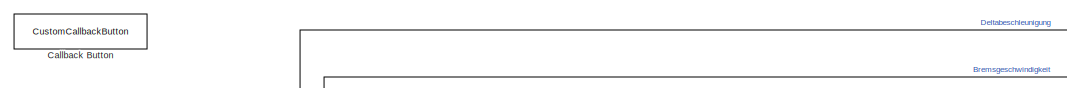
[diagram: root canvas - part 1/3, top left region]
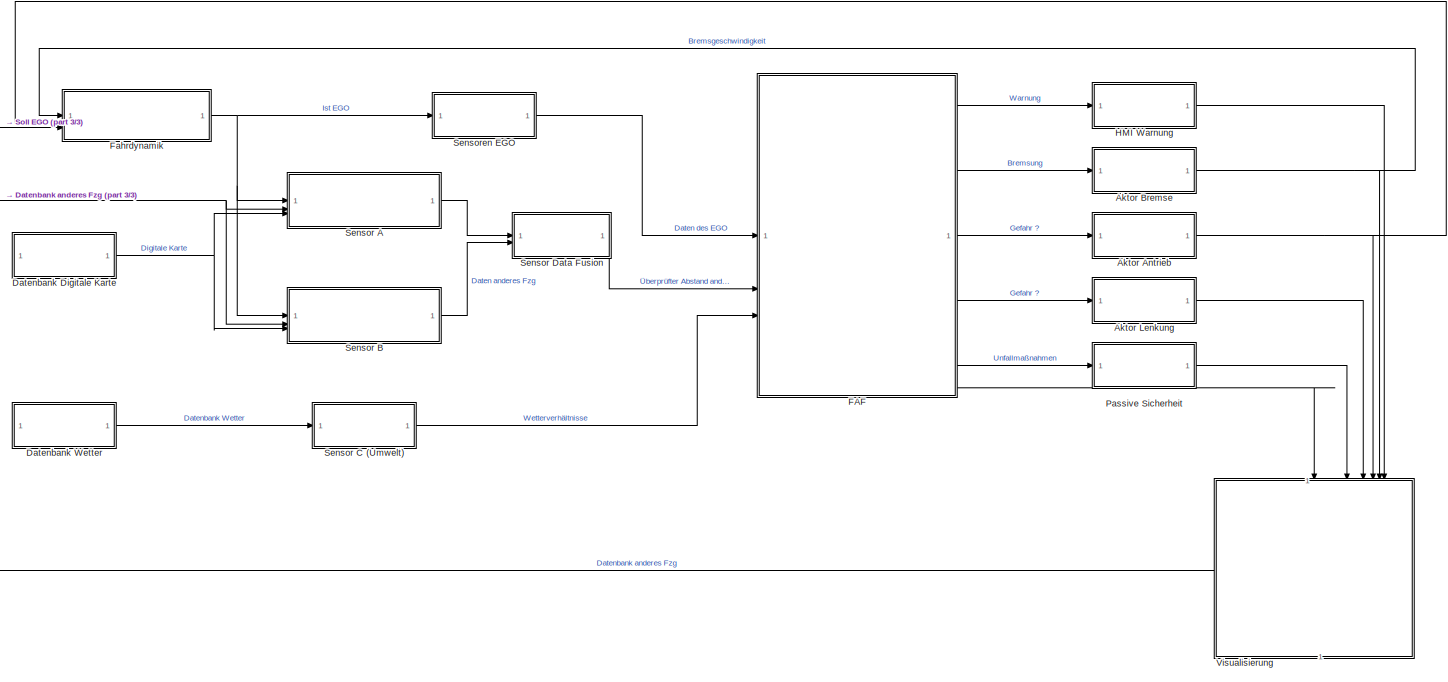
[diagram: root canvas - part 2/3, most of the canvas]
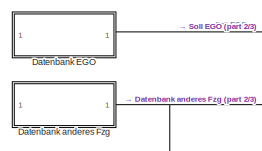
[diagram: root canvas - part 3/3, top left region]
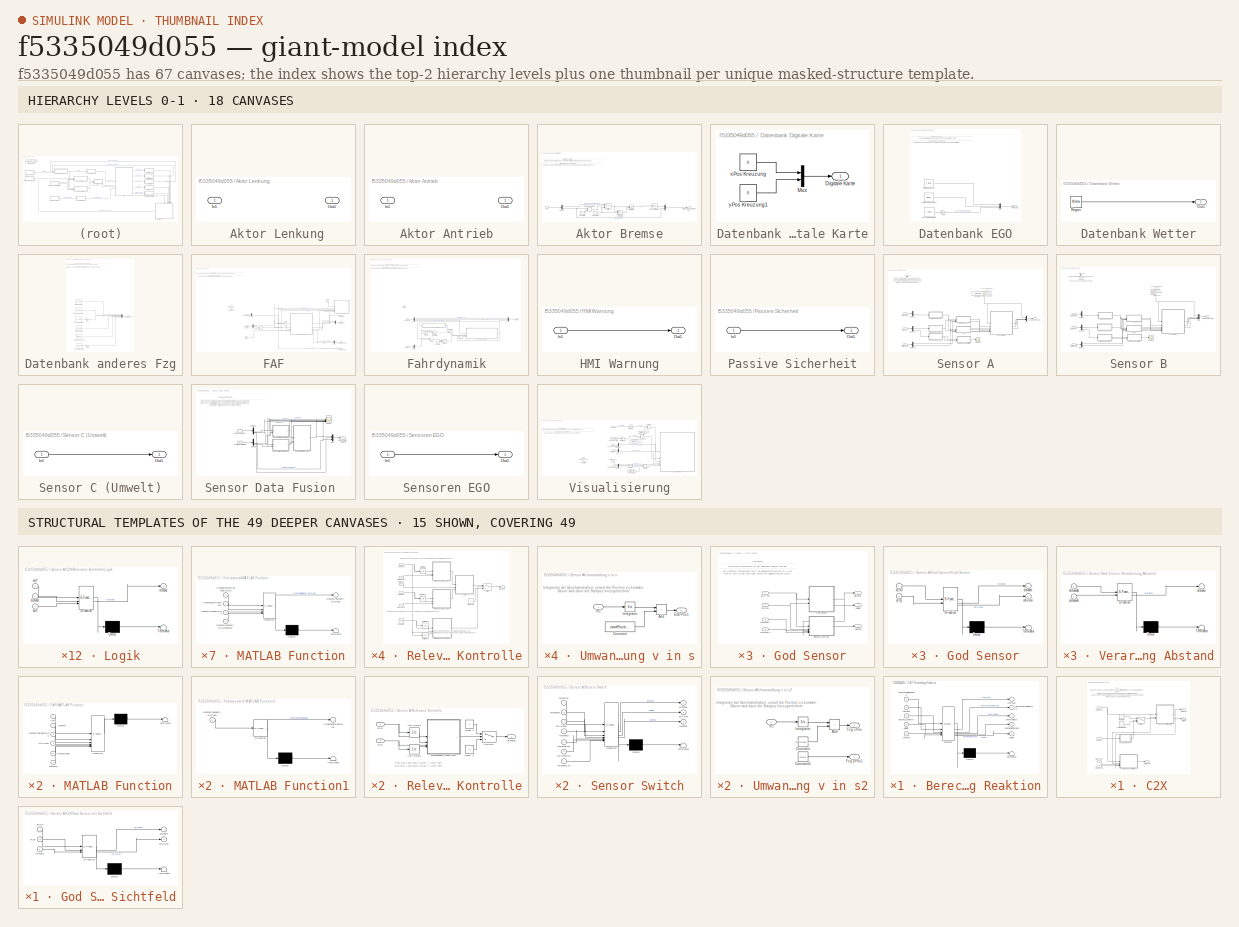
[diagram: thumbnail index - top-2 hierarchy levels (18 canvases) + 15 structural-template representatives of the remaining 49 canvases]
MODEL slx_f5335049d055
KIND model
CONFIG AbsTol = auto
CONFIG EnableMultiTasking = off
CONFIG FixedStep = sampletime
CONFIG InitFcn = if ~evalin('base', 'exist(''Auswertungsflag'', ''var'')') || evalin('base', 'Auswertungsflag.Value == 0')\n    Parameterskript;\n    run('StartGUI');  % explizit ausführen (nicht blockierend!)\nend\n
CONFIG MaxStep = auto
CONFIG MinStep = auto
CONFIG RelTol = 1e-3
CONFIG SampleTimeConstraint = Unconstrained
CONFIG SolverName = FixedStepAuto
CONFIG StartTime = 0.0
CONFIG StopTime = stoptime
BLOCK [SubSystem]  Aktor Lenkung
  NameLocation = top
BLOCK [Inport]  Aktor Lenkung/In1
BLOCK [Outport]  Aktor Lenkung/Out1
BLOCK [SubSystem] Aktor Antrieb
  NameLocation = top
BLOCK [Inport] Aktor Antrieb/In1
BLOCK [Outport] Aktor Antrieb/Out1
BLOCK [SubSystem] Aktor Bremse
  NameLocation = top
BLOCK [Outport] Aktor Bremse/Bremsgeschwindigkeit
BLOCK [Constant] Aktor Bremse/Constant
BLOCK [Constant] Aktor Bremse/Constant1
  Value = 0
BLOCK [Demux] Aktor Bremse/Demux
  Outputs = 2
BLOCK [Inport] Aktor Bremse/In1
BLOCK [Integrator] Aktor Bremse/Integrator
  ExternalReset = level
BLOCK [Mux] Aktor Bremse/Mux
  DisplayOption = bar
  Inputs = 2
BLOCK [RelationalOperator] Aktor Bremse/Relational Operator
  InputSameDT = off
  Operator = ==
  OutDataTypeStr = boolean
  RndMeth = Simplest
BLOCK [RelationalOperator] Aktor Bremse/Relational Operator1
  InputSameDT = off
  Operator = ==
  OutDataTypeStr = boolean
  RndMeth = Simplest
BLOCK [Switch] Aktor Bremse/Switch
  Criteria = u2 > Threshold
  InputSameDT = off
  SaturateOnIntegerOverflow = off
BLOCK [TransportDelay] Aktor Bremse/Transport Delay1
  DelayTime = 0.3
BLOCK [CustomCallbackButton] Callback Button
  Configuration = {"components":[{"name":"BackgroundImageComponent","settings":{"image":{"size":[0,0],"src":"default","srcOrientation":"Right"},"position":[0,0,1,1]}},{"name":"ButtonStateComponent","settings":{"buttonType":"momentary","clickFcn":"clear all\nclc\nassignin('base','Auswertungsbutton',makeParam(1));\nStartGUI","onValue":1,"position":[0,0,1,1],"pressDelay":"500","pressFcn":"","repeatInterval":"0","state...<+2097ch>
  CustomBackgroundColor = {"color":[0.9568627451,0.9568627451,0.9568627451],"show":true}
BLOCK [SubSystem] Datenbank Digitale Karte
  NameLocation = top
BLOCK [Outport] Datenbank Digitale Karte/Digitale Karte
BLOCK [Mux] Datenbank Digitale Karte/Mux
  DisplayOption = bar
  Inputs = 2
BLOCK [Constant] Datenbank Digitale Karte/xPos Kreuzung
  Value = 0
BLOCK [Constant] Datenbank Digitale Karte/yPos Kreuzung1
  Value = 0
BLOCK [SubSystem] Datenbank EGO
BLOCK [Outport] Datenbank EGO/Daten EGO
BLOCK [Constant] Datenbank EGO/Fahrzeugmasse in kg
  Value = mEGO
BLOCK [Gain] Datenbank EGO/Gain
  Gain = 1/3.6
BLOCK [Constant] Datenbank EGO/Geschwindigkeit km//h
  Value = v_EGO
BLOCK [Constant] Datenbank EGO/Motorleistung in kW
  Value = P_EGO
BLOCK [Mux] Datenbank EGO/Mux
  DisplayOption = bar
  Inputs = 3
BLOCK [SubSystem] Datenbank Wetter
  NameLocation = top
BLOCK [Outport] Datenbank Wetter/Out1
BLOCK [Constant] Datenbank Wetter/Regen
  Value = Wetter
BLOCK [SubSystem] Datenbank anderes Fzg
BLOCK [Outport] Datenbank anderes Fzg/Daten anderes Fzg
BLOCK [Constant] Datenbank anderes Fzg/Fahrzeugmasse in kg
  Value = mFZG
BLOCK [Constant] Datenbank anderes Fzg/Fahrzeugmasse in kg1
  Value = mEGO
BLOCK [Gain] Datenbank anderes Fzg/Gain
  Gain = 1/3.6
BLOCK [Gain] Datenbank anderes Fzg/Gain1
  Gain = 1/3.6
BLOCK [Constant] Datenbank anderes Fzg/Geschwindigkeit km//h
  Value = v_FZG
BLOCK [Constant] Datenbank anderes Fzg/Geschwindigkeit km//h1
  Value = v_EGO
BLOCK [Constant] Datenbank anderes Fzg/Motorleistung in kW
  Value = P_FZG
BLOCK [Constant] Datenbank anderes Fzg/Motorleistung in kW1
  Value = P_EGO
BLOCK [Mux] Datenbank anderes Fzg/Mux
  DisplayOption = bar
  Inputs = 6
BLOCK [SubSystem] FAF
  NameLocation = top
  PortSchema = {"entries":[{"content":{"sides":[{"content":{"connectorIds":["In1","In2","In3"]},"type":"ConnectorPlacement.EquallySpacedRectSide","uuid":"e9873d16-4c3b-480f-9547-2fedddc84fa2"},{"content":{"connectorIds":["Out1","Out2","Out3","Out4","Out5"],"side":"RIGHT"},"type":"ConnectorPlacement.EquallySpacedRectSide","uuid":"f34f386d-1ebd-46c0-87cc-6cf8d85cbe5c"},{"content":{"side":"TOP"},"type":"ConnectorPl...<+412ch>
BLOCK [Sum] FAF/Add
  IconShape = rectangular
BLOCK [Outport] FAF/Antriebssignal
  Port = 3
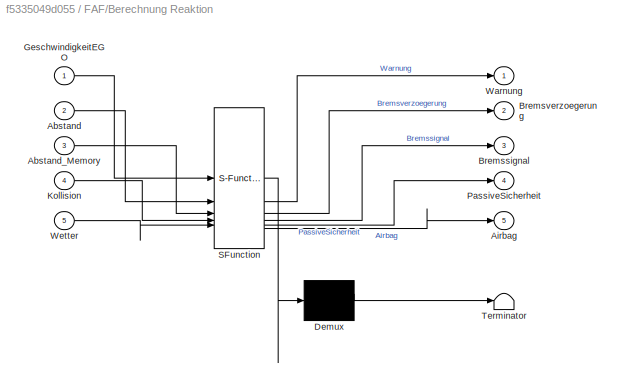
BLOCK [SubSystem] FAF/Berechnung Reaktion
  ErrorFcn = Stateflow.Translate.translate
  PermitHierarchicalResolution = ExplicitOnly
  SFBlockType = MATLAB Function
  TreatAsAtomicUnit = on
BLOCK [Demux] FAF/Berechnung Reaktion/ Demux 
  Outputs = 1
BLOCK [S-Function] FAF/Berechnung Reaktion/ SFunction 
  EnableBusSupport = on
  FunctionName = sf_sfun
  Parameters = Airbagzeit,Ausloesezeit,Haltezeit,dt,g,munass,muschnee,mutrocken
  PortCounts = [5 6]
  SFcnIsStateOwnerBlock = off
  SFunctionDeploymentMode = off
  Tag = Stateflow S-Function 1
BLOCK [Terminator] FAF/Berechnung Reaktion/ Terminator 
BLOCK [Inport] FAF/Berechnung Reaktion/Abstand
  Port = 2
BLOCK [Inport] FAF/Berechnung Reaktion/Abstand_Memory
  Port = 3
BLOCK [Outport] FAF/Berechnung Reaktion/Airbag
  Port = 5
BLOCK [Outport] FAF/Berechnung Reaktion/Bremssignal
  Port = 3
BLOCK [Outport] FAF/Berechnung Reaktion/Bremsverzoegerung
  Port = 2
BLOCK [Inport] FAF/Berechnung Reaktion/GeschwindigkeitEGO
BLOCK [Inport] FAF/Berechnung Reaktion/Kollision
  Port = 4
BLOCK [Outport] FAF/Berechnung Reaktion/PassiveSicherheit
  Port = 4
BLOCK [Outport] FAF/Berechnung Reaktion/Warnung
BLOCK [Inport] FAF/Berechnung Reaktion/Wetter
  Port = 5
BLOCK [Outport] FAF/Bremssignal
  Port = 2
BLOCK [Clock] FAF/Clock1
  Decimation = 1
BLOCK [Inport] FAF/Daten des EGO
BLOCK [Demux] FAF/Demux
  Outputs = 3
BLOCK [Demux] FAF/Demux1
  Outputs = 3
BLOCK [Outport] FAF/Lenksignal
  Port = 4
BLOCK [SubSystem] FAF/MATLAB Function
  ErrorFcn = Stateflow.Translate.translate
  PermitHierarchicalResolution = ExplicitOnly
  SFBlockType = MATLAB Function
  SystemSampleTime = sampletime
  TreatAsAtomicUnit = on
BLOCK [Demux] FAF/MATLAB Function/ Demux 
  Outputs = 1
BLOCK [S-Function] FAF/MATLAB Function/ SFunction 
  EnableBusSupport = on
  FunctionName = sf_sfun
  Parameters = defaultDistance
  PortCounts = [6 1]
  SFcnIsStateOwnerBlock = off
  SFunctionDeploymentMode = off
  Tag = Stateflow S-Function 5
BLOCK [Terminator] FAF/MATLAB Function/ Terminator 
BLOCK [Inport] FAF/MATLAB Function/Abstand
  Port = 2
BLOCK [Inport] FAF/MATLAB Function/Bremssignal
  Port = 5
BLOCK [Inport] FAF/MATLAB Function/GeschwindigkeitEGO
  Port = 3
BLOCK [Inport] FAF/MATLAB Function/Kollision
  Port = 4
BLOCK [Inport] FAF/MATLAB Function/Warnung
  Port = 6
BLOCK [Inport] FAF/MATLAB Function/time
BLOCK [Memory] FAF/Memory
  InheritSampleTime = on
BLOCK [Mux] FAF/Mux
  DisplayOption = bar
  Inputs = 2
BLOCK [Mux] FAF/Mux1
  DisplayOption = bar
  Inputs = 2
BLOCK [Outport] FAF/Passive Sicherheit
  Port = 5
BLOCK [Outport] FAF/Visualisierung EGO
  Port = 6
BLOCK [Outport] FAF/Warnsignal
BLOCK [Inport] FAF/Wetter
  Port = 3
BLOCK [Inport] FAF/Überprüfter Abstand
  Port = 2
BLOCK [SubSystem] Fahrdynamik
  NameLocation = top
BLOCK [Sum] Fahrdynamik/Add2
  IconShape = rectangular
BLOCK [Inport] Fahrdynamik/Antrieb
  Port = 2
BLOCK [Inport] Fahrdynamik/Bremse
BLOCK [Constant] Fahrdynamik/Constant4
  Value = 0
BLOCK [Inport] Fahrdynamik/Daten EGO
  Port = 3
BLOCK [Demux] Fahrdynamik/Demux
  Outputs = 3
BLOCK [Demux] Fahrdynamik/Demux1
  Outputs = 2
BLOCK [Integrator] Fahrdynamik/Integrator2
  ExternalReset = rising
BLOCK [Outport] Fahrdynamik/Ist
BLOCK [SubSystem] Fahrdynamik/MATLAB Function
  ErrorFcn = Stateflow.Translate.translate
  PermitHierarchicalResolution = ExplicitOnly
  SFBlockType = MATLAB Function
  SystemSampleTime = sampletime
  TreatAsAtomicUnit = on
BLOCK [Demux] Fahrdynamik/MATLAB Function/ Demux 
  Outputs = 1
BLOCK [S-Function] Fahrdynamik/MATLAB Function/ SFunction 
  EnableBusSupport = on
  FunctionName = sf_sfun
  PortCounts = [4 2]
  SFcnIsStateOwnerBlock = off
  SFunctionDeploymentMode = off
  Tag = Stateflow S-Function 9
BLOCK [Terminator] Fahrdynamik/MATLAB Function/ Terminator 
BLOCK [Inport] Fahrdynamik/MATLAB Function/Anfahrgeschwindigkeit
  Port = 2
BLOCK [Inport] Fahrdynamik/MATLAB Function/GeschwindigkeitEGO
  Port = 3
BLOCK [Outport] Fahrdynamik/MATLAB Function/Geschwindigkeit_EGOneu
BLOCK [Inport] Fahrdynamik/MATLAB Function/Geschwindigkeit_EGOneudelay
  Port = 4
BLOCK [Inport] Fahrdynamik/MATLAB Function/VorgabeGeschwindigkeitEGO
BLOCK [SubSystem] Fahrdynamik/MATLAB Function1
  ErrorFcn = Stateflow.Translate.translate
  PermitHierarchicalResolution = ExplicitOnly
  SFBlockType = MATLAB Function
  TreatAsAtomicUnit = on
BLOCK [Demux] Fahrdynamik/MATLAB Function1/ Demux 
  Outputs = 1
BLOCK [S-Function] Fahrdynamik/MATLAB Function1/ SFunction 
  EnableBusSupport = on
  FunctionName = sf_sfun
  Parameters = P_EGO,Wetter,g,mEGO,munass,muschnee,mutrocken
  PortCounts = [1 2]
  SFcnIsStateOwnerBlock = off
  SFunctionDeploymentMode = off
  Tag = Stateflow S-Function 33
BLOCK [Terminator] Fahrdynamik/MATLAB Function1/ Terminator 
BLOCK [Outport] Fahrdynamik/MATLAB Function1/Anfahrbeschleunigung
BLOCK [Inport] Fahrdynamik/MATLAB Function1/Geschwindigkeit_EGOneu
BLOCK [Memory] Fahrdynamik/Memory1
  InheritSampleTime = on
BLOCK [Memory] Fahrdynamik/Memory2
  InheritSampleTime = on
BLOCK [Mux] Fahrdynamik/Mux
  DisplayOption = bar
  Inputs = 3
BLOCK [RelationalOperator] Fahrdynamik/Relational Operator2
  InputSameDT = off
  Operator = >
  OutDataTypeStr = boolean
  RndMeth = Simplest
BLOCK [Switch] Fahrdynamik/Switch3
  InputSameDT = off
  SaturateOnIntegerOverflow = off
BLOCK [SubSystem] HMI Warnung
  NameLocation = top
BLOCK [Inport] HMI Warnung/In1
BLOCK [Outport] HMI Warnung/Out1
BLOCK [SubSystem] Passive Sicherheit
  NameLocation = top
BLOCK [Inport] Passive Sicherheit/In1
BLOCK [Outport] Passive Sicherheit/Out1
BLOCK [SubSystem] Sensor A
  NameLocation = top
BLOCK [Outport] Sensor A/Abstand Sensor A
BLOCK [SubSystem] Sensor A/C2X
BLOCK [Inport] Sensor A/C2X/EGO Pos1
BLOCK [Inport] Sensor A/C2X/Fzg Pos
  Port = 2
BLOCK [SubSystem] Sensor A/C2X/Fzg Vorhanden?
  ErrorFcn = Stateflow.Translate.translate
  PermitHierarchicalResolution = ExplicitOnly
  SFBlockType = MATLAB Function
  TreatAsAtomicUnit = on
BLOCK [Demux] Sensor A/C2X/Fzg Vorhanden?/ Demux 
  Outputs = 1
BLOCK [S-Function] Sensor A/C2X/Fzg Vorhanden?/ SFunction 
  EnableBusSupport = on
  FunctionName = sf_sfun
  PortCounts = [1 2]
  SFcnIsStateOwnerBlock = off
  SFunctionDeploymentMode = off
  Tag = Stateflow S-Function 3
BLOCK [Terminator] Sensor A/C2X/Fzg Vorhanden?/ Terminator 
BLOCK [Inport] Sensor A/C2X/Fzg Vorhanden?/u
BLOCK [Outport] Sensor A/C2X/Fzg Vorhanden?/y
BLOCK [SubSystem] Sensor A/C2X/God Sensor mit Sichtfeld
  ErrorFcn = Stateflow.Translate.translate
  PermitHierarchicalResolution = ExplicitOnly
  SFBlockType = MATLAB Function
  TreatAsAtomicUnit = on
BLOCK [Demux] Sensor A/C2X/God Sensor mit Sichtfeld/ Demux 
  Outputs = 1
BLOCK [S-Function] Sensor A/C2X/God Sensor mit Sichtfeld/ SFunction 
  EnableBusSupport = on
  FunctionName = sf_sfun
  Parameters = OeffnungswinkelA,ReichweiteA,b,l,xFZG,yEGO
  PortCounts = [3 3]
  SFcnIsStateOwnerBlock = off
  SFunctionDeploymentMode = off
  Tag = Stateflow S-Function 13
BLOCK [Terminator] Sensor A/C2X/God Sensor mit Sichtfeld/ Terminator 
BLOCK [Outport] Sensor A/C2X/God Sensor mit Sichtfeld/collision
  Port = 2
BLOCK [Outport] Sensor A/C2X/God Sensor mit Sichtfeld/distance
BLOCK [Inport] Sensor A/C2X/God Sensor mit Sichtfeld/relevanz
  Port = 3
BLOCK [Inport] Sensor A/C2X/God Sensor mit Sichtfeld/xEGO
BLOCK [Inport] Sensor A/C2X/God Sensor mit Sichtfeld/yFzg
  Port = 2
BLOCK [Constant] Sensor A/C2X/Hindernis
BLOCK [Constant] Sensor A/C2X/Kein Hindernis
  Value = -1
BLOCK [Inport] Sensor A/C2X/Kreuzung x
  Port = 4
BLOCK [Inport] Sensor A/C2X/Kreuzung y
  Port = 3
BLOCK [Outport] Sensor A/C2X/Relevanz
  Port = 3
BLOCK [SubSystem] Sensor A/C2X/Relevanz Kontrolle
BLOCK [SubSystem] Sensor A/C2X/Relevanz Kontrolle/Bewegungs-Achse Fzg
  ErrorFcn = Stateflow.Translate.translate
  PermitHierarchicalResolution = ExplicitOnly
  SFBlockType = MATLAB Function
  TreatAsAtomicUnit = on
BLOCK [Demux] Sensor A/C2X/Relevanz Kontrolle/Bewegungs-Achse Fzg/ Demux 
  Outputs = 1
BLOCK [S-Function] Sensor A/C2X/Relevanz Kontrolle/Bewegungs-Achse Fzg/ SFunction 
  EnableBusSupport = on
  FunctionName = sf_sfun
  PortCounts = [4 2]
  SFcnIsStateOwnerBlock = off
  SFunctionDeploymentMode = off
  Tag = Stateflow S-Function 14
BLOCK [Terminator] Sensor A/C2X/Relevanz Kontrolle/Bewegungs-Achse Fzg/ Terminator 
BLOCK [Outport] Sensor A/C2X/Relevanz Kontrolle/Bewegungs-Achse Fzg/bewegung
BLOCK [Inport] Sensor A/C2X/Relevanz Kontrolle/Bewegungs-Achse Fzg/xFzg
BLOCK [Inport] Sensor A/C2X/Relevanz Kontrolle/Bewegungs-Achse Fzg/xFzg_prev
  Port = 2
BLOCK [Inport] Sensor A/C2X/Relevanz Kontrolle/Bewegungs-Achse Fzg/yFzg
  Port = 3
BLOCK [Inport] Sensor A/C2X/Relevanz Kontrolle/Bewegungs-Achse Fzg/yFzg_prev
  Port = 4
BLOCK [Constant] Sensor A/C2X/Relevanz Kontrolle/Constant
  Value = xFZG
BLOCK [Inport] Sensor A/C2X/Relevanz Kontrolle/EGO Pos
BLOCK [Inport] Sensor A/C2X/Relevanz Kontrolle/Fzg Pos Y
  Port = 2
BLOCK [Inport] Sensor A/C2X/Relevanz Kontrolle/Kreuzung x
  Port = 5
BLOCK [Inport] Sensor A/C2X/Relevanz Kontrolle/Kreuzung y
  Port = 3
BLOCK [SubSystem] Sensor A/C2X/Relevanz Kontrolle/Logik
  ErrorFcn = Stateflow.Translate.translate
  PermitHierarchicalResolution = ExplicitOnly
  SFBlockType = MATLAB Function
  TreatAsAtomicUnit = on
BLOCK [Demux] Sensor A/C2X/Relevanz Kontrolle/Logik/ Demux 
  Outputs = 1
BLOCK [S-Function] Sensor A/C2X/Relevanz Kontrolle/Logik/ SFunction 
  EnableBusSupport = on
  FunctionName = sf_sfun
  Parameters = defaultDistance
  PortCounts = [3 2]
  SFcnIsStateOwnerBlock = off
  SFunctionDeploymentMode = off
  Tag = Stateflow S-Function 15
BLOCK [Terminator] Sensor A/C2X/Relevanz Kontrolle/Logik/ Terminator 
BLOCK [Inport] Sensor A/C2X/Relevanz Kontrolle/Logik/distance
  Port = 2
BLOCK [Inport] Sensor A/C2X/Relevanz Kontrolle/Logik/outX
  Port = 3
BLOCK [Inport] Sensor A/C2X/Relevanz Kontrolle/Logik/outY
BLOCK [Outport] Sensor A/C2X/Relevanz Kontrolle/Logik/relevanz
BLOCK [Constant] Sensor A/C2X/Relevanz Kontrolle/Relevanz
  Value = -1
BLOCK [SubSystem] Sensor A/C2X/Relevanz Kontrolle/Relevanz Kreuzung x
  ErrorFcn = Stateflow.Translate.translate
  PermitHierarchicalResolution = ExplicitOnly
  SFBlockType = MATLAB Function
  TreatAsAtomicUnit = on
BLOCK [Demux] Sensor A/C2X/Relevanz Kontrolle/Relevanz Kreuzung x/ Demux 
  Outputs = 1
BLOCK [S-Function] Sensor A/C2X/Relevanz Kontrolle/Relevanz Kreuzung x/ SFunction 
  EnableBusSupport = on
  FunctionName = sf_sfun
  Parameters = b
  PortCounts = [3 2]
  SFcnIsStateOwnerBlock = off
  SFunctionDeploymentMode = off
  Tag = Stateflow S-Function 18
BLOCK [Terminator] Sensor A/C2X/Relevanz Kontrolle/Relevanz Kreuzung x/ Terminator 
BLOCK [Outport] Sensor A/C2X/Relevanz Kontrolle/Relevanz Kreuzung x/out
BLOCK [Inport] Sensor A/C2X/Relevanz Kontrolle/Relevanz Kreuzung x/targetX
  Port = 3
BLOCK [Inport] Sensor A/C2X/Relevanz Kontrolle/Relevanz Kreuzung x/xPos
BLOCK [Inport] Sensor A/C2X/Relevanz Kontrolle/Relevanz Kreuzung x/xPos_prev
  Port = 2
BLOCK [SubSystem] Sensor A/C2X/Relevanz Kontrolle/Relevanz Kreuzung y
  ErrorFcn = Stateflow.Translate.translate
  PermitHierarchicalResolution = ExplicitOnly
  SFBlockType = MATLAB Function
  TreatAsAtomicUnit = on
BLOCK [Demux] Sensor A/C2X/Relevanz Kontrolle/Relevanz Kreuzung y/ Demux 
  Outputs = 1
BLOCK [S-Function] Sensor A/C2X/Relevanz Kontrolle/Relevanz Kreuzung y/ SFunction 
  EnableBusSupport = on
  FunctionName = sf_sfun
  Parameters = b
  PortCounts = [3 2]
  SFcnIsStateOwnerBlock = off
  SFunctionDeploymentMode = off
  Tag = Stateflow S-Function 24
BLOCK [Terminator] Sensor A/C2X/Relevanz Kontrolle/Relevanz Kreuzung y/ Terminator 
BLOCK [Outport] Sensor A/C2X/Relevanz Kontrolle/Relevanz Kreuzung y/out
BLOCK [Inport] Sensor A/C2X/Relevanz Kontrolle/Relevanz Kreuzung y/targetY
  Port = 3
BLOCK [Inport] Sensor A/C2X/Relevanz Kontrolle/Relevanz Kreuzung y/yPos
BLOCK [Inport] Sensor A/C2X/Relevanz Kontrolle/Relevanz Kreuzung y/yPos_prev
  Port = 2
BLOCK [Switch] Sensor A/C2X/Relevanz Kontrolle/Switch
  Criteria = u2 > Threshold
  InputSameDT = off
  SaturateOnIntegerOverflow = off
  Threshold = 1
BLOCK [UnitDelay] Sensor A/C2X/Relevanz Kontrolle/Unit Delay
  HasFrameUpgradeWarning = on
  SampleTime = -1
BLOCK [UnitDelay] Sensor A/C2X/Relevanz Kontrolle/Unit Delay1
  HasFrameUpgradeWarning = on
  SampleTime = -1
BLOCK [UnitDelay] Sensor A/C2X/Relevanz Kontrolle/Unit Delay2
  HasFrameUpgradeWarning = on
  SampleTime = -1
BLOCK [UnitDelay] Sensor A/C2X/Relevanz Kontrolle/Unit Delay3
  HasFrameUpgradeWarning = on
  SampleTime = -1
BLOCK [Inport] Sensor A/C2X/Relevanz Kontrolle/distance
  Port = 4
BLOCK [Outport] Sensor A/C2X/Relevanz Kontrolle/relevanz
BLOCK [Switch] Sensor A/C2X/Switch
  InputSameDT = off
  SaturateOnIntegerOverflow = off
BLOCK [Outport] Sensor A/C2X/collision
  Port = 2
BLOCK [Outport] Sensor A/C2X/distance
BLOCK [Constant] Sensor A/Constant
  Value = SensorA
BLOCK [Inport] Sensor A/Daten EGO
BLOCK [Inport] Sensor A/Daten Fzg
  Port = 2
BLOCK [Demux] Sensor A/Demux
  Outputs = 3
BLOCK [Demux] Sensor A/Demux1
  Outputs = 2
BLOCK [Demux] Sensor A/Demux2
  Outputs = 6
BLOCK [Inport] Sensor A/Digitale Karte
  Port = 3
BLOCK [SubSystem] Sensor A/God Sensor
BLOCK [Inport] Sensor A/God Sensor/EGO Pos
BLOCK [Inport] Sensor A/God Sensor/Fzg Pos
  Port = 2
BLOCK [SubSystem] Sensor A/God Sensor/God Sensor
  ErrorFcn = Stateflow.Translate.translate
  PermitHierarchicalResolution = ExplicitOnly
  SFBlockType = MATLAB Function
  TreatAsAtomicUnit = on
BLOCK [Demux] Sensor A/God Sensor/God Sensor/ Demux 
  Outputs = 1
BLOCK [S-Function] Sensor A/God Sensor/God Sensor/ SFunction 
  EnableBusSupport = on
  FunctionName = sf_sfun
  Parameters = b,l,xFZG,yEGO
  PortCounts = [2 3]
  SFcnIsStateOwnerBlock = off
  SFunctionDeploymentMode = off
  Tag = Stateflow S-Function 25
BLOCK [Terminator] Sensor A/God Sensor/God Sensor/ Terminator 
BLOCK [Outport] Sensor A/God Sensor/God Sensor/collision
  Port = 2
BLOCK [Outport] Sensor A/God Sensor/God Sensor/distance
BLOCK [Inport] Sensor A/God Sensor/God Sensor/xEGO
BLOCK [Inport] Sensor A/God Sensor/God Sensor/yFzg
  Port = 2
BLOCK [Inport] Sensor A/God Sensor/Kreuzung x
  Port = 4
BLOCK [Inport] Sensor A/God Sensor/Kreuzung y
  Port = 3
BLOCK [SubSystem] Sensor A/God Sensor/Relevanz Kontrolle
BLOCK [SubSystem] Sensor A/God Sensor/Relevanz Kontrolle/Bewegungs-Achse Fzg
  ErrorFcn = Stateflow.Translate.translate
  PermitHierarchicalResolution = ExplicitOnly
  SFBlockType = MATLAB Function
  TreatAsAtomicUnit = on
BLOCK [Demux] Sensor A/God Sensor/Relevanz Kontrolle/Bewegungs-Achse Fzg/ Demux 
  Outputs = 1
BLOCK [S-Function] Sensor A/God Sensor/Relevanz Kontrolle/Bewegungs-Achse Fzg/ SFunction 
  EnableBusSupport = on
  FunctionName = sf_sfun
  PortCounts = [4 2]
  SFcnIsStateOwnerBlock = off
  SFunctionDeploymentMode = off
  Tag = Stateflow S-Function 26
BLOCK [Terminator] Sensor A/God Sensor/Relevanz Kontrolle/Bewegungs-Achse Fzg/ Terminator 
BLOCK [Outport] Sensor A/God Sensor/Relevanz Kontrolle/Bewegungs-Achse Fzg/bewegung
BLOCK [Inport] Sensor A/God Sensor/Relevanz Kontrolle/Bewegungs-Achse Fzg/xFzg
BLOCK [Inport] Sensor A/God Sensor/Relevanz Kontrolle/Bewegungs-Achse Fzg/xFzg_prev
  Port = 2
BLOCK [Inport] Sensor A/God Sensor/Relevanz Kontrolle/Bewegungs-Achse Fzg/yFzg
  Port = 3
BLOCK [Inport] Sensor A/God Sensor/Relevanz Kontrolle/Bewegungs-Achse Fzg/yFzg_prev
  Port = 4
BLOCK [Constant] Sensor A/God Sensor/Relevanz Kontrolle/Constant
  Value = xFZG
BLOCK [Inport] Sensor A/God Sensor/Relevanz Kontrolle/EGO Pos
BLOCK [Inport] Sensor A/God Sensor/Relevanz Kontrolle/Fzg Pos Y
  Port = 2
BLOCK [Inport] Sensor A/God Sensor/Relevanz Kontrolle/Kreuzung x
  Port = 5
BLOCK [Inport] Sensor A/God Sensor/Relevanz Kontrolle/Kreuzung y
  Port = 3
BLOCK [SubSystem] Sensor A/God Sensor/Relevanz Kontrolle/Logik
  ErrorFcn = Stateflow.Translate.translate
  PermitHierarchicalResolution = ExplicitOnly
  SFBlockType = MATLAB Function
  TreatAsAtomicUnit = on
BLOCK [Demux] Sensor A/God Sensor/Relevanz Kontrolle/Logik/ Demux 
  Outputs = 1
BLOCK [S-Function] Sensor A/God Sensor/Relevanz Kontrolle/Logik/ SFunction 
  EnableBusSupport = on
  FunctionName = sf_sfun
  Parameters = defaultDistance
  PortCounts = [3 2]
  SFcnIsStateOwnerBlock = off
  SFunctionDeploymentMode = off
  Tag = Stateflow S-Function 4
BLOCK [Terminator] Sensor A/God Sensor/Relevanz Kontrolle/Logik/ Terminator 
BLOCK [Inport] Sensor A/God Sensor/Relevanz Kontrolle/Logik/distance
  Port = 2
BLOCK [Inport] Sensor A/God Sensor/Relevanz Kontrolle/Logik/outX
  Port = 3
BLOCK [Inport] Sensor A/God Sensor/Relevanz Kontrolle/Logik/outY
BLOCK [Outport] Sensor A/God Sensor/Relevanz Kontrolle/Logik/relevanz
BLOCK [Constant] Sensor A/God Sensor/Relevanz Kontrolle/Relevanz
  Value = -1
BLOCK [SubSystem] Sensor A/God Sensor/Relevanz Kontrolle/Relevanz Kreuzung x
  ErrorFcn = Stateflow.Translate.translate
  PermitHierarchicalResolution = ExplicitOnly
  SFBlockType = MATLAB Function
  TreatAsAtomicUnit = on
BLOCK [Demux] Sensor A/God Sensor/Relevanz Kontrolle/Relevanz Kreuzung x/ Demux 
  Outputs = 1
BLOCK [S-Function] Sensor A/God Sensor/Relevanz Kontrolle/Relevanz Kreuzung x/ SFunction 
  EnableBusSupport = on
  FunctionName = sf_sfun
  Parameters = b
  PortCounts = [3 2]
  SFcnIsStateOwnerBlock = off
  SFunctionDeploymentMode = off
  Tag = Stateflow S-Function 37
BLOCK [Terminator] Sensor A/God Sensor/Relevanz Kontrolle/Relevanz Kreuzung x/ Terminator 
BLOCK [Outport] Sensor A/God Sensor/Relevanz Kontrolle/Relevanz Kreuzung x/out
BLOCK [Inport] Sensor A/God Sensor/Relevanz Kontrolle/Relevanz Kreuzung x/targetX
  Port = 3
BLOCK [Inport] Sensor A/God Sensor/Relevanz Kontrolle/Relevanz Kreuzung x/xPos
BLOCK [Inport] Sensor A/God Sensor/Relevanz Kontrolle/Relevanz Kreuzung x/xPos_prev
  Port = 2
BLOCK [SubSystem] Sensor A/God Sensor/Relevanz Kontrolle/Relevanz Kreuzung y
  ErrorFcn = Stateflow.Translate.translate
  PermitHierarchicalResolution = ExplicitOnly
  SFBlockType = MATLAB Function
  TreatAsAtomicUnit = on
BLOCK [Demux] Sensor A/God Sensor/Relevanz Kontrolle/Relevanz Kreuzung y/ Demux 
  Outputs = 1
BLOCK [S-Function] Sensor A/God Sensor/Relevanz Kontrolle/Relevanz Kreuzung y/ SFunction 
  EnableBusSupport = on
  FunctionName = sf_sfun
  Parameters = b
  PortCounts = [3 2]
  SFcnIsStateOwnerBlock = off
  SFunctionDeploymentMode = off
  Tag = Stateflow S-Function 38
BLOCK [Terminator] Sensor A/God Sensor/Relevanz Kontrolle/Relevanz Kreuzung y/ Terminator 
BLOCK [Outport] Sensor A/God Sensor/Relevanz Kontrolle/Relevanz Kreuzung y/out
BLOCK [Inport] Sensor A/God Sensor/Relevanz Kontrolle/Relevanz Kreuzung y/targetY
  Port = 3
BLOCK [Inport] Sensor A/God Sensor/Relevanz Kontrolle/Relevanz Kreuzung y/yPos
BLOCK [Inport] Sensor A/God Sensor/Relevanz Kontrolle/Relevanz Kreuzung y/yPos_prev
  Port = 2
BLOCK [Switch] Sensor A/God Sensor/Relevanz Kontrolle/Switch
  Criteria = u2 > Threshold
  InputSameDT = off
  SaturateOnIntegerOverflow = off
  Threshold = 1
BLOCK [UnitDelay] Sensor A/God Sensor/Relevanz Kontrolle/Unit Delay
  HasFrameUpgradeWarning = on
  SampleTime = -1
BLOCK [UnitDelay] Sensor A/God Sensor/Relevanz Kontrolle/Unit Delay1
  HasFrameUpgradeWarning = on
  SampleTime = -1
BLOCK [UnitDelay] Sensor A/God Sensor/Relevanz Kontrolle/Unit Delay2
  HasFrameUpgradeWarning = on
  SampleTime = -1
BLOCK [UnitDelay] Sensor A/God Sensor/Relevanz Kontrolle/Unit Delay3
  HasFrameUpgradeWarning = on
  SampleTime = -1
BLOCK [Inport] Sensor A/God Sensor/Relevanz Kontrolle/distance
  Port = 4
BLOCK [Outport] Sensor A/God Sensor/Relevanz Kontrolle/relevanz
BLOCK [Outport] Sensor A/God Sensor/collision
  Port = 2
BLOCK [Outport] Sensor A/God Sensor/distance
BLOCK [Outport] Sensor A/God Sensor/relevanz
  Port = 3
BLOCK [Mux] Sensor A/Mux
  DisplayOption = bar
BLOCK [SubSystem] Sensor A/Relevanz Kontrolle
BLOCK [SubSystem] Sensor A/Relevanz Kontrolle/Bewegungs-Achse Fzg1
  ErrorFcn = Stateflow.Translate.translate
  PermitHierarchicalResolution = ExplicitOnly
  SFBlockType = MATLAB Function
  TreatAsAtomicUnit = on
BLOCK [Demux] Sensor A/Relevanz Kontrolle/Bewegungs-Achse Fzg1/ Demux 
  Outputs = 1
BLOCK [S-Function] Sensor A/Relevanz Kontrolle/Bewegungs-Achse Fzg1/ SFunction 
  EnableBusSupport = on
  FunctionName = sf_sfun
  PortCounts = [4 2]
  SFcnIsStateOwnerBlock = off
  SFunctionDeploymentMode = off
  Tag = Stateflow S-Function 39
BLOCK [Terminator] Sensor A/Relevanz Kontrolle/Bewegungs-Achse Fzg1/ Terminator 
BLOCK [Outport] Sensor A/Relevanz Kontrolle/Bewegungs-Achse Fzg1/bewegung
BLOCK [Inport] Sensor A/Relevanz Kontrolle/Bewegungs-Achse Fzg1/xFzg
BLOCK [Inport] Sensor A/Relevanz Kontrolle/Bewegungs-Achse Fzg1/xFzg_prev
  Port = 2
BLOCK [Inport] Sensor A/Relevanz Kontrolle/Bewegungs-Achse Fzg1/yFzg
  Port = 3
BLOCK [Inport] Sensor A/Relevanz Kontrolle/Bewegungs-Achse Fzg1/yFzg_prev
  Port = 4
BLOCK [Constant] Sensor A/Relevanz Kontrolle/Const -1
  Value = -1
BLOCK [Constant] Sensor A/Relevanz Kontrolle/Const 1
BLOCK [Switch] Sensor A/Relevanz Kontrolle/Switch1
  Criteria = u2 > Threshold
  InputSameDT = off
  SaturateOnIntegerOverflow = off
  Threshold = 1
BLOCK [UnitDelay] Sensor A/Relevanz Kontrolle/Unit Delay4
  HasFrameUpgradeWarning = on
  SampleTime = -1
BLOCK [UnitDelay] Sensor A/Relevanz Kontrolle/Unit Delay5
  HasFrameUpgradeWarning = on
  SampleTime = -1
BLOCK [Outport] Sensor A/Relevanz Kontrolle/relevanz1
BLOCK [Inport] Sensor A/Relevanz Kontrolle/xPos
BLOCK [Inport] Sensor A/Relevanz Kontrolle/yPos
  Port = 2
BLOCK [Scope] Sensor A/Scope
  Floating = off
  NumInputPorts = 1
  ScopeSpecificationString = Simulink.scopes.TimeScopeBlockCfg('CurrentConfiguration', extmgr.ConfigurationSet(extmgr.Configuration('Core','General UI',true),extmgr.Configuration('Core','Source UI',true),extmgr.Configuration('Sources','WiredSimulink',true,'DataLoggingVariableName','ScopeData1'),extmgr.Configuration('Visuals','Time Domain',true,'SerializedDisplays',{struct('MinYLimReal','-1.25','MaxYLimReal','1.25','YLabelReal...<+1473ch>
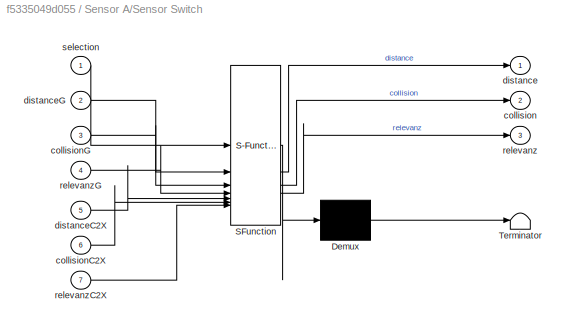
BLOCK [SubSystem] Sensor A/Sensor Switch
  ErrorFcn = Stateflow.Translate.translate
  PermitHierarchicalResolution = ExplicitOnly
  SFBlockType = MATLAB Function
  TreatAsAtomicUnit = on
BLOCK [Demux] Sensor A/Sensor Switch/ Demux 
  Outputs = 1
BLOCK [S-Function] Sensor A/Sensor Switch/ SFunction 
  EnableBusSupport = on
  FunctionName = sf_sfun
  PortCounts = [7 4]
  SFcnIsStateOwnerBlock = off
  SFunctionDeploymentMode = off
  Tag = Stateflow S-Function 40
BLOCK [Terminator] Sensor A/Sensor Switch/ Terminator 
BLOCK [Outport] Sensor A/Sensor Switch/collision
  Port = 2
BLOCK [Inport] Sensor A/Sensor Switch/collisionC2X
  Port = 6
BLOCK [Inport] Sensor A/Sensor Switch/collisionG
  Port = 3
BLOCK [Outport] Sensor A/Sensor Switch/distance
BLOCK [Inport] Sensor A/Sensor Switch/distanceC2X
  Port = 5
BLOCK [Inport] Sensor A/Sensor Switch/distanceG
  Port = 2
BLOCK [Outport] Sensor A/Sensor Switch/relevanz
  Port = 3
BLOCK [Inport] Sensor A/Sensor Switch/relevanzC2X
  Port = 7
BLOCK [Inport] Sensor A/Sensor Switch/relevanzG
  Port = 4
BLOCK [Inport] Sensor A/Sensor Switch/selection
BLOCK [SubSystem] Sensor A/Umwandlung v in s
BLOCK [Sum] Sensor A/Umwandlung v in s/Add
  IconShape = rectangular
BLOCK [Constant] Sensor A/Umwandlung v in s/Constant
  Value = startPositionEGO
BLOCK [Outport] Sensor A/Umwandlung v in s/EGO Pos1
BLOCK [Inport] Sensor A/Umwandlung v in s/In1
BLOCK [Integrator] Sensor A/Umwandlung v in s/Integrator
BLOCK [SubSystem] Sensor A/Umwandlung v in s1
BLOCK [Sum] Sensor A/Umwandlung v in s1/Add
  IconShape = rectangular
BLOCK [Constant] Sensor A/Umwandlung v in s1/Constant
  Value = startPositionFzg
BLOCK [Outport] Sensor A/Umwandlung v in s1/Fzg Pos
BLOCK [Inport] Sensor A/Umwandlung v in s1/In1
BLOCK [Integrator] Sensor A/Umwandlung v in s1/Integrator
BLOCK [SubSystem] Sensor A/Umwandlung v in s2
BLOCK [Sum] Sensor A/Umwandlung v in s2/Add
  IconShape = rectangular
BLOCK [Constant] Sensor A/Umwandlung v in s2/Constant
  Value = startPositionFzg2
BLOCK [Constant] Sensor A/Umwandlung v in s2/Constant1
  Value = yEGO
BLOCK [Outport] Sensor A/Umwandlung v in s2/Fzg xPos
BLOCK [Outport] Sensor A/Umwandlung v in s2/Fzg yPos1
  Port = 2
BLOCK [Inport] Sensor A/Umwandlung v in s2/In1
BLOCK [Integrator] Sensor A/Umwandlung v in s2/Integrator
BLOCK [SubSystem] Sensor B
  NameLocation = top
BLOCK [Outport] Sensor B/Abstand Sensor B
BLOCK [Constant] Sensor B/Constant
  Value = SensorB
BLOCK [Inport] Sensor B/Daten EGO
BLOCK [Inport] Sensor B/Daten Fzg
  Port = 2
BLOCK [Demux] Sensor B/Demux
  Outputs = 3
BLOCK [Demux] Sensor B/Demux1
  Outputs = 2
BLOCK [Demux] Sensor B/Demux2
  Outputs = 6
BLOCK [Inport] Sensor B/Digitale Karte
  Port = 3
BLOCK [SubSystem] Sensor B/Kamera
BLOCK [Inport] Sensor B/Kamera/EGO Pos1
BLOCK [Inport] Sensor B/Kamera/Fzg Pos Y
  Port = 2
BLOCK [SubSystem] Sensor B/Kamera/God Sensor mit Sichtfeld 
  ErrorFcn = Stateflow.Translate.translate
  PermitHierarchicalResolution = ExplicitOnly
  SFBlockType = MATLAB Function
  TreatAsAtomicUnit = on
BLOCK [Demux] Sensor B/Kamera/God Sensor mit Sichtfeld / Demux 
  Outputs = 1
BLOCK [S-Function] Sensor B/Kamera/God Sensor mit Sichtfeld / SFunction 
  EnableBusSupport = on
  FunctionName = sf_sfun
  Parameters = OeffnungswinkelB,ReichweiteB,b,l,xFZG,yEGO
  PortCounts = [2 3]
  SFcnIsStateOwnerBlock = off
  SFunctionDeploymentMode = off
  Tag = Stateflow S-Function 41
BLOCK [Terminator] Sensor B/Kamera/God Sensor mit Sichtfeld / Terminator 
BLOCK [Outport] Sensor B/Kamera/God Sensor mit Sichtfeld /collision
  Port = 2
BLOCK [Outport] Sensor B/Kamera/God Sensor mit Sichtfeld /distance
BLOCK [Inport] Sensor B/Kamera/God Sensor mit Sichtfeld /xEGO
BLOCK [Inport] Sensor B/Kamera/God Sensor mit Sichtfeld /yFzg
  Port = 2
BLOCK [Inport] Sensor B/Kamera/Kreuzung x
  Port = 4
BLOCK [Inport] Sensor B/Kamera/Kreuzung y
  Port = 3
BLOCK [SubSystem] Sensor B/Kamera/Relevanz Kontrolle
BLOCK [SubSystem] Sensor B/Kamera/Relevanz Kontrolle/Bewegungs-Achse Fzg
  ErrorFcn = Stateflow.Translate.translate
  PermitHierarchicalResolution = ExplicitOnly
  SFBlockType = MATLAB Function
  TreatAsAtomicUnit = on
BLOCK [Demux] Sensor B/Kamera/Relevanz Kontrolle/Bewegungs-Achse Fzg/ Demux 
  Outputs = 1
BLOCK [S-Function] Sensor B/Kamera/Relevanz Kontrolle/Bewegungs-Achse Fzg/ SFunction 
  EnableBusSupport = on
  FunctionName = sf_sfun
  PortCounts = [4 2]
  SFcnIsStateOwnerBlock = off
  SFunctionDeploymentMode = off
  Tag = Stateflow S-Function 42
BLOCK [Terminator] Sensor B/Kamera/Relevanz Kontrolle/Bewegungs-Achse Fzg/ Terminator 
BLOCK [Outport] Sensor B/Kamera/Relevanz Kontrolle/Bewegungs-Achse Fzg/bewegung
BLOCK [Inport] Sensor B/Kamera/Relevanz Kontrolle/Bewegungs-Achse Fzg/xFzg
BLOCK [Inport] Sensor B/Kamera/Relevanz Kontrolle/Bewegungs-Achse Fzg/xFzg_prev
  Port = 2
BLOCK [Inport] Sensor B/Kamera/Relevanz Kontrolle/Bewegungs-Achse Fzg/yFzg
  Port = 3
BLOCK [Inport] Sensor B/Kamera/Relevanz Kontrolle/Bewegungs-Achse Fzg/yFzg_prev
  Port = 4
BLOCK [Constant] Sensor B/Kamera/Relevanz Kontrolle/Constant
  Value = xFZG
BLOCK [Inport] Sensor B/Kamera/Relevanz Kontrolle/EGO Pos
BLOCK [Inport] Sensor B/Kamera/Relevanz Kontrolle/Fzg Pos Y
  Port = 2
BLOCK [Inport] Sensor B/Kamera/Relevanz Kontrolle/Kreuzung x
  Port = 5
BLOCK [Inport] Sensor B/Kamera/Relevanz Kontrolle/Kreuzung y
  Port = 3
BLOCK [SubSystem] Sensor B/Kamera/Relevanz Kontrolle/Logik
  ErrorFcn = Stateflow.Translate.translate
  PermitHierarchicalResolution = ExplicitOnly
  SFBlockType = MATLAB Function
  TreatAsAtomicUnit = on
BLOCK [Demux] Sensor B/Kamera/Relevanz Kontrolle/Logik/ Demux 
  Outputs = 1
BLOCK [S-Function] Sensor B/Kamera/Relevanz Kontrolle/Logik/ SFunction 
  EnableBusSupport = on
  FunctionName = sf_sfun
  Parameters = defaultDistance
  PortCounts = [3 2]
  SFcnIsStateOwnerBlock = off
  SFunctionDeploymentMode = off
  Tag = Stateflow S-Function 43
BLOCK [Terminator] Sensor B/Kamera/Relevanz Kontrolle/Logik/ Terminator 
BLOCK [Inport] Sensor B/Kamera/Relevanz Kontrolle/Logik/distance
  Port = 2
BLOCK [Inport] Sensor B/Kamera/Relevanz Kontrolle/Logik/outX
  Port = 3
BLOCK [Inport] Sensor B/Kamera/Relevanz Kontrolle/Logik/outY
BLOCK [Outport] Sensor B/Kamera/Relevanz Kontrolle/Logik/relevanz
BLOCK [Constant] Sensor B/Kamera/Relevanz Kontrolle/Relevanz
  Value = -1
BLOCK [SubSystem] Sensor B/Kamera/Relevanz Kontrolle/Relevanz Kreuzung x
  ErrorFcn = Stateflow.Translate.translate
  PermitHierarchicalResolution = ExplicitOnly
  SFBlockType = MATLAB Function
  TreatAsAtomicUnit = on
BLOCK [Demux] Sensor B/Kamera/Relevanz Kontrolle/Relevanz Kreuzung x/ Demux 
  Outputs = 1
BLOCK [S-Function] Sensor B/Kamera/Relevanz Kontrolle/Relevanz Kreuzung x/ SFunction 
  EnableBusSupport = on
  FunctionName = sf_sfun
  Parameters = b
  PortCounts = [3 2]
  SFcnIsStateOwnerBlock = off
  SFunctionDeploymentMode = off
  Tag = Stateflow S-Function 44
BLOCK [Terminator] Sensor B/Kamera/Relevanz Kontrolle/Relevanz Kreuzung x/ Terminator 
BLOCK [Outport] Sensor B/Kamera/Relevanz Kontrolle/Relevanz Kreuzung x/out
BLOCK [Inport] Sensor B/Kamera/Relevanz Kontrolle/Relevanz Kreuzung x/targetX
  Port = 3
BLOCK [Inport] Sensor B/Kamera/Relevanz Kontrolle/Relevanz Kreuzung x/xPos
BLOCK [Inport] Sensor B/Kamera/Relevanz Kontrolle/Relevanz Kreuzung x/xPos_prev
  Port = 2
BLOCK [SubSystem] Sensor B/Kamera/Relevanz Kontrolle/Relevanz Kreuzung y
  ErrorFcn = Stateflow.Translate.translate
  PermitHierarchicalResolution = ExplicitOnly
  SFBlockType = MATLAB Function
  TreatAsAtomicUnit = on
BLOCK [Demux] Sensor B/Kamera/Relevanz Kontrolle/Relevanz Kreuzung y/ Demux 
  Outputs = 1
BLOCK [S-Function] Sensor B/Kamera/Relevanz Kontrolle/Relevanz Kreuzung y/ SFunction 
  EnableBusSupport = on
  FunctionName = sf_sfun
  Parameters = b
  PortCounts = [3 2]
  SFcnIsStateOwnerBlock = off
  SFunctionDeploymentMode = off
  Tag = Stateflow S-Function 45
BLOCK [Terminator] Sensor B/Kamera/Relevanz Kontrolle/Relevanz Kreuzung y/ Terminator 
BLOCK [Outport] Sensor B/Kamera/Relevanz Kontrolle/Relevanz Kreuzung y/out
BLOCK [Inport] Sensor B/Kamera/Relevanz Kontrolle/Relevanz Kreuzung y/targetY
  Port = 3
BLOCK [Inport] Sensor B/Kamera/Relevanz Kontrolle/Relevanz Kreuzung y/yPos
BLOCK [Inport] Sensor B/Kamera/Relevanz Kontrolle/Relevanz Kreuzung y/yPos_prev
  Port = 2
BLOCK [Switch] Sensor B/Kamera/Relevanz Kontrolle/Switch
  Criteria = u2 > Threshold
  InputSameDT = off
  SaturateOnIntegerOverflow = off
  Threshold = 1
BLOCK [UnitDelay] Sensor B/Kamera/Relevanz Kontrolle/Unit Delay
  HasFrameUpgradeWarning = on
  SampleTime = -1
BLOCK [UnitDelay] Sensor B/Kamera/Relevanz Kontrolle/Unit Delay1
  HasFrameUpgradeWarning = on
  SampleTime = -1
BLOCK [UnitDelay] Sensor B/Kamera/Relevanz Kontrolle/Unit Delay2
  HasFrameUpgradeWarning = on
  SampleTime = -1
BLOCK [UnitDelay] Sensor B/Kamera/Relevanz Kontrolle/Unit Delay3
  HasFrameUpgradeWarning = on
  SampleTime = -1
BLOCK [Inport] Sensor B/Kamera/Relevanz Kontrolle/distance
  Port = 4
BLOCK [Outport] Sensor B/Kamera/Relevanz Kontrolle/relevanz
BLOCK [Outport] Sensor B/Kamera/collision
  Port = 2
BLOCK [Outport] Sensor B/Kamera/distance
BLOCK [Outport] Sensor B/Kamera/relevanz
  Port = 3
BLOCK [Mux] Sensor B/Mux
  DisplayOption = bar
BLOCK [SubSystem] Sensor B/Radar
BLOCK [Inport] Sensor B/Radar/EGO Pos1
BLOCK [Inport] Sensor B/Radar/Fzg Pos Y
  Port = 2
BLOCK [SubSystem] Sensor B/Radar/God Sensor mit Sichtfeld 1
  ErrorFcn = Stateflow.Translate.translate
  PermitHierarchicalResolution = ExplicitOnly
  SFBlockType = MATLAB Function
  TreatAsAtomicUnit = on
BLOCK [Demux] Sensor B/Radar/God Sensor mit Sichtfeld 1/ Demux 
  Outputs = 1
BLOCK [S-Function] Sensor B/Radar/God Sensor mit Sichtfeld 1/ SFunction 
  EnableBusSupport = on
  FunctionName = sf_sfun
  Parameters = OeffnungswinkelB,ReichweiteB,b,l,xFZG,yEGO
  PortCounts = [2 3]
  SFcnIsStateOwnerBlock = off
  SFunctionDeploymentMode = off
  Tag = Stateflow S-Function 6
BLOCK [Terminator] Sensor B/Radar/God Sensor mit Sichtfeld 1/ Terminator 
BLOCK [Outport] Sensor B/Radar/God Sensor mit Sichtfeld 1/collision
  Port = 2
BLOCK [Outport] Sensor B/Radar/God Sensor mit Sichtfeld 1/distance
BLOCK [Inport] Sensor B/Radar/God Sensor mit Sichtfeld 1/xEGO
BLOCK [Inport] Sensor B/Radar/God Sensor mit Sichtfeld 1/yFzg
  Port = 2
BLOCK [Inport] Sensor B/Radar/Kreuzung x
  Port = 4
BLOCK [Inport] Sensor B/Radar/Kreuzung y
  Port = 3
BLOCK [SubSystem] Sensor B/Radar/Relevanz Kontrolle
BLOCK [SubSystem] Sensor B/Radar/Relevanz Kontrolle/Bewegungs-Achse Fzg
  ErrorFcn = Stateflow.Translate.translate
  PermitHierarchicalResolution = ExplicitOnly
  SFBlockType = MATLAB Function
  TreatAsAtomicUnit = on
BLOCK [Demux] Sensor B/Radar/Relevanz Kontrolle/Bewegungs-Achse Fzg/ Demux 
  Outputs = 1
BLOCK [S-Function] Sensor B/Radar/Relevanz Kontrolle/Bewegungs-Achse Fzg/ SFunction 
  EnableBusSupport = on
  FunctionName = sf_sfun
  PortCounts = [4 2]
  SFcnIsStateOwnerBlock = off
  SFunctionDeploymentMode = off
  Tag = Stateflow S-Function 47
BLOCK [Terminator] Sensor B/Radar/Relevanz Kontrolle/Bewegungs-Achse Fzg/ Terminator 
BLOCK [Outport] Sensor B/Radar/Relevanz Kontrolle/Bewegungs-Achse Fzg/bewegung
BLOCK [Inport] Sensor B/Radar/Relevanz Kontrolle/Bewegungs-Achse Fzg/xFzg
BLOCK [Inport] Sensor B/Radar/Relevanz Kontrolle/Bewegungs-Achse Fzg/xFzg_prev
  Port = 2
BLOCK [Inport] Sensor B/Radar/Relevanz Kontrolle/Bewegungs-Achse Fzg/yFzg
  Port = 3
BLOCK [Inport] Sensor B/Radar/Relevanz Kontrolle/Bewegungs-Achse Fzg/yFzg_prev
  Port = 4
BLOCK [Constant] Sensor B/Radar/Relevanz Kontrolle/Constant
  Value = xFZG
BLOCK [Inport] Sensor B/Radar/Relevanz Kontrolle/EGO Pos
BLOCK [Inport] Sensor B/Radar/Relevanz Kontrolle/Fzg Pos Y
  Port = 2
BLOCK [Inport] Sensor B/Radar/Relevanz Kontrolle/Kreuzung x
  Port = 5
BLOCK [Inport] Sensor B/Radar/Relevanz Kontrolle/Kreuzung y
  Port = 3
BLOCK [SubSystem] Sensor B/Radar/Relevanz Kontrolle/Logik
  ErrorFcn = Stateflow.Translate.translate
  PermitHierarchicalResolution = ExplicitOnly
  SFBlockType = MATLAB Function
  TreatAsAtomicUnit = on
BLOCK [Demux] Sensor B/Radar/Relevanz Kontrolle/Logik/ Demux 
  Outputs = 1
BLOCK [S-Function] Sensor B/Radar/Relevanz Kontrolle/Logik/ SFunction 
  EnableBusSupport = on
  FunctionName = sf_sfun
  Parameters = defaultDistance
  PortCounts = [3 2]
  SFcnIsStateOwnerBlock = off
  SFunctionDeploymentMode = off
  Tag = Stateflow S-Function 48
BLOCK [Terminator] Sensor B/Radar/Relevanz Kontrolle/Logik/ Terminator 
BLOCK [Inport] Sensor B/Radar/Relevanz Kontrolle/Logik/distance
  Port = 2
BLOCK [Inport] Sensor B/Radar/Relevanz Kontrolle/Logik/outX
  Port = 3
BLOCK [Inport] Sensor B/Radar/Relevanz Kontrolle/Logik/outY
BLOCK [Outport] Sensor B/Radar/Relevanz Kontrolle/Logik/relevanz
BLOCK [Constant] Sensor B/Radar/Relevanz Kontrolle/Relevanz
  Value = -1
BLOCK [SubSystem] Sensor B/Radar/Relevanz Kontrolle/Relevanz Kreuzung x
  ErrorFcn = Stateflow.Translate.translate
  PermitHierarchicalResolution = ExplicitOnly
  SFBlockType = MATLAB Function
  TreatAsAtomicUnit = on
BLOCK [Demux] Sensor B/Radar/Relevanz Kontrolle/Relevanz Kreuzung x/ Demux 
  Outputs = 1
BLOCK [S-Function] Sensor B/Radar/Relevanz Kontrolle/Relevanz Kreuzung x/ SFunction 
  EnableBusSupport = on
  FunctionName = sf_sfun
  Parameters = b
  PortCounts = [3 2]
  SFcnIsStateOwnerBlock = off
  SFunctionDeploymentMode = off
  Tag = Stateflow S-Function 49
BLOCK [Terminator] Sensor B/Radar/Relevanz Kontrolle/Relevanz Kreuzung x/ Terminator 
BLOCK [Outport] Sensor B/Radar/Relevanz Kontrolle/Relevanz Kreuzung x/out
BLOCK [Inport] Sensor B/Radar/Relevanz Kontrolle/Relevanz Kreuzung x/targetX
  Port = 3
BLOCK [Inport] Sensor B/Radar/Relevanz Kontrolle/Relevanz Kreuzung x/xPos
BLOCK [Inport] Sensor B/Radar/Relevanz Kontrolle/Relevanz Kreuzung x/xPos_prev
  Port = 2
BLOCK [SubSystem] Sensor B/Radar/Relevanz Kontrolle/Relevanz Kreuzung y
  ErrorFcn = Stateflow.Translate.translate
  PermitHierarchicalResolution = ExplicitOnly
  SFBlockType = MATLAB Function
  TreatAsAtomicUnit = on
BLOCK [Demux] Sensor B/Radar/Relevanz Kontrolle/Relevanz Kreuzung y/ Demux 
  Outputs = 1
BLOCK [S-Function] Sensor B/Radar/Relevanz Kontrolle/Relevanz Kreuzung y/ SFunction 
  EnableBusSupport = on
  FunctionName = sf_sfun
  Parameters = b
  PortCounts = [3 2]
  SFcnIsStateOwnerBlock = off
  SFunctionDeploymentMode = off
  Tag = Stateflow S-Function 50
BLOCK [Terminator] Sensor B/Radar/Relevanz Kontrolle/Relevanz Kreuzung y/ Terminator 
BLOCK [Outport] Sensor B/Radar/Relevanz Kontrolle/Relevanz Kreuzung y/out
BLOCK [Inport] Sensor B/Radar/Relevanz Kontrolle/Relevanz Kreuzung y/targetY
  Port = 3
BLOCK [Inport] Sensor B/Radar/Relevanz Kontrolle/Relevanz Kreuzung y/yPos
BLOCK [Inport] Sensor B/Radar/Relevanz Kontrolle/Relevanz Kreuzung y/yPos_prev
  Port = 2
BLOCK [Switch] Sensor B/Radar/Relevanz Kontrolle/Switch
  Criteria = u2 > Threshold
  InputSameDT = off
  SaturateOnIntegerOverflow = off
  Threshold = 1
BLOCK [UnitDelay] Sensor B/Radar/Relevanz Kontrolle/Unit Delay
  HasFrameUpgradeWarning = on
  SampleTime = -1
BLOCK [UnitDelay] Sensor B/Radar/Relevanz Kontrolle/Unit Delay1
  HasFrameUpgradeWarning = on
  SampleTime = -1
BLOCK [UnitDelay] Sensor B/Radar/Relevanz Kontrolle/Unit Delay2
  HasFrameUpgradeWarning = on
  SampleTime = -1
BLOCK [UnitDelay] Sensor B/Radar/Relevanz Kontrolle/Unit Delay3
  HasFrameUpgradeWarning = on
  SampleTime = -1
BLOCK [Inport] Sensor B/Radar/Relevanz Kontrolle/distance
  Port = 4
BLOCK [Outport] Sensor B/Radar/Relevanz Kontrolle/relevanz
BLOCK [Outport] Sensor B/Radar/collision
  Port = 2
BLOCK [Outport] Sensor B/Radar/distance
BLOCK [Outport] Sensor B/Radar/relevanz
  Port = 3
BLOCK [SubSystem] Sensor B/Relevanz Kontrolle
BLOCK [SubSystem] Sensor B/Relevanz Kontrolle/Bewegungs-Achse Fzg1
  ErrorFcn = Stateflow.Translate.translate
  PermitHierarchicalResolution = ExplicitOnly
  SFBlockType = MATLAB Function
  TreatAsAtomicUnit = on
BLOCK [Demux] Sensor B/Relevanz Kontrolle/Bewegungs-Achse Fzg1/ Demux 
  Outputs = 1
BLOCK [S-Function] Sensor B/Relevanz Kontrolle/Bewegungs-Achse Fzg1/ SFunction 
  EnableBusSupport = on
  FunctionName = sf_sfun
  PortCounts = [4 2]
  SFcnIsStateOwnerBlock = off
  SFunctionDeploymentMode = off
  Tag = Stateflow S-Function 51
BLOCK [Terminator] Sensor B/Relevanz Kontrolle/Bewegungs-Achse Fzg1/ Terminator 
BLOCK [Outport] Sensor B/Relevanz Kontrolle/Bewegungs-Achse Fzg1/bewegung
BLOCK [Inport] Sensor B/Relevanz Kontrolle/Bewegungs-Achse Fzg1/xFzg
BLOCK [Inport] Sensor B/Relevanz Kontrolle/Bewegungs-Achse Fzg1/xFzg_prev
  Port = 2
BLOCK [Inport] Sensor B/Relevanz Kontrolle/Bewegungs-Achse Fzg1/yFzg
  Port = 3
BLOCK [Inport] Sensor B/Relevanz Kontrolle/Bewegungs-Achse Fzg1/yFzg_prev
  Port = 4
BLOCK [Constant] Sensor B/Relevanz Kontrolle/Const -1
  Value = -1
BLOCK [Constant] Sensor B/Relevanz Kontrolle/Const 1
BLOCK [Switch] Sensor B/Relevanz Kontrolle/Switch1
  Criteria = u2 > Threshold
  InputSameDT = off
  SaturateOnIntegerOverflow = off
  Threshold = 1
BLOCK [UnitDelay] Sensor B/Relevanz Kontrolle/Unit Delay4
  HasFrameUpgradeWarning = on
  SampleTime = -1
BLOCK [UnitDelay] Sensor B/Relevanz Kontrolle/Unit Delay5
  HasFrameUpgradeWarning = on
  SampleTime = -1
BLOCK [Outport] Sensor B/Relevanz Kontrolle/relevanz1
BLOCK [Inport] Sensor B/Relevanz Kontrolle/xPos
BLOCK [Inport] Sensor B/Relevanz Kontrolle/yPos
  Port = 2
BLOCK [Scope] Sensor B/Scope
  Floating = off
  NumInputPorts = 1
  ScopeSpecificationString = Simulink.scopes.TimeScopeBlockCfg('CurrentConfiguration', extmgr.ConfigurationSet(extmgr.Configuration('Core','General UI',true),extmgr.Configuration('Core','Source UI',true),extmgr.Configuration('Sources','WiredSimulink',true,'DataLoggingVariableName','ScopeData2'),extmgr.Configuration('Visuals','Time Domain',true),extmgr.Configuration('Tools','Plot Navigation',true),extmgr.Configuration('Tools',...<+40ch>
BLOCK [SubSystem] Sensor B/Sensor Switch
  ErrorFcn = Stateflow.Translate.translate
  PermitHierarchicalResolution = ExplicitOnly
  SFBlockType = MATLAB Function
  TreatAsAtomicUnit = on
BLOCK [Demux] Sensor B/Sensor Switch/ Demux 
  Outputs = 1
BLOCK [S-Function] Sensor B/Sensor Switch/ SFunction 
  EnableBusSupport = on
  FunctionName = sf_sfun
  PortCounts = [7 4]
  SFcnIsStateOwnerBlock = off
  SFunctionDeploymentMode = off
  Tag = Stateflow S-Function 52
BLOCK [Terminator] Sensor B/Sensor Switch/ Terminator 
BLOCK [Outport] Sensor B/Sensor Switch/collision
  Port = 2
BLOCK [Inport] Sensor B/Sensor Switch/collisionK
  Port = 3
BLOCK [Inport] Sensor B/Sensor Switch/collisionR
  Port = 6
BLOCK [Outport] Sensor B/Sensor Switch/distance
BLOCK [Inport] Sensor B/Sensor Switch/distanceK
  Port = 2
BLOCK [Inport] Sensor B/Sensor Switch/distanceR
  Port = 5
BLOCK [Outport] Sensor B/Sensor Switch/relevanz
  Port = 3
BLOCK [Inport] Sensor B/Sensor Switch/relevanzK
  Port = 4
BLOCK [Inport] Sensor B/Sensor Switch/relevanzR
  Port = 7
BLOCK [Inport] Sensor B/Sensor Switch/selection
BLOCK [SubSystem] Sensor B/Umwandlung v in s
BLOCK [Sum] Sensor B/Umwandlung v in s/Add
  IconShape = rectangular
BLOCK [Constant] Sensor B/Umwandlung v in s/Constant
  Value = startPositionEGO
BLOCK [Outport] Sensor B/Umwandlung v in s/EGO Pos1
BLOCK [Inport] Sensor B/Umwandlung v in s/In1
BLOCK [Integrator] Sensor B/Umwandlung v in s/Integrator
BLOCK [SubSystem] Sensor B/Umwandlung v in s1
BLOCK [Sum] Sensor B/Umwandlung v in s1/Add
  IconShape = rectangular
BLOCK [Constant] Sensor B/Umwandlung v in s1/Constant
  Value = startPositionFzg
BLOCK [Outport] Sensor B/Umwandlung v in s1/Fzg Pos
BLOCK [Inport] Sensor B/Umwandlung v in s1/In1
BLOCK [Integrator] Sensor B/Umwandlung v in s1/Integrator
BLOCK [SubSystem] Sensor B/Umwandlung v in s2
BLOCK [Sum] Sensor B/Umwandlung v in s2/Add
  IconShape = rectangular
BLOCK [Constant] Sensor B/Umwandlung v in s2/Constant
  Value = startPositionFzg2
BLOCK [Constant] Sensor B/Umwandlung v in s2/Constant1
  Value = yEGO
BLOCK [Outport] Sensor B/Umwandlung v in s2/Fzg xPos
BLOCK [Outport] Sensor B/Umwandlung v in s2/Fzg yPos1
  Port = 2
BLOCK [Inport] Sensor B/Umwandlung v in s2/In1
BLOCK [Integrator] Sensor B/Umwandlung v in s2/Integrator
BLOCK [SubSystem] Sensor C (Umwelt)
  NameLocation = top
BLOCK [Inport] Sensor C (Umwelt)/In1
BLOCK [Outport] Sensor C (Umwelt)/Out1
BLOCK [SubSystem] Sensor Data Fusion 
  NameLocation = top
BLOCK [Inport] Sensor Data Fusion /Abstandsdaten A
BLOCK [Inport] Sensor Data Fusion /Abstandsdaten B
  Port = 2
BLOCK [Demux] Sensor Data Fusion /Demux
BLOCK [Demux] Sensor Data Fusion /Demux1
BLOCK [Mux] Sensor Data Fusion /Mux
  DisplayOption = bar
  Inputs = 3
BLOCK [Scope] Sensor Data Fusion /Scope
  Floating = off
  NumInputPorts = 8
  ScopeSpecificationString = Simulink.scopes.TimeScopeBlockCfg('CurrentConfiguration', extmgr.ConfigurationSet(extmgr.Configuration('Core','General UI',true),extmgr.Configuration('Core','Source UI',true),extmgr.Configuration('Sources','WiredSimulink',true,'DataLoggingVariableName','ScopeData1'),extmgr.Configuration('Visuals','Time Domain',true,'SerializedDisplays',{struct('MinYLimReal','-61.43345','MaxYLimReal','130.54608','Y...<+1868ch>
BLOCK [SubSystem] Sensor Data Fusion /Verarbeitung Abstand
  ErrorFcn = Stateflow.Translate.translate
  PermitHierarchicalResolution = ExplicitOnly
  SFBlockType = MATLAB Function
  TreatAsAtomicUnit = on
BLOCK [Demux] Sensor Data Fusion /Verarbeitung Abstand/ Demux 
  Outputs = 1
BLOCK [S-Function] Sensor Data Fusion /Verarbeitung Abstand/ SFunction 
  EnableBusSupport = on
  FunctionName = sf_sfun
  Parameters = defaultDistance
  PortCounts = [2 2]
  SFcnIsStateOwnerBlock = off
  SFunctionDeploymentMode = off
  Tag = Stateflow S-Function 53
BLOCK [Terminator] Sensor Data Fusion /Verarbeitung Abstand/ Terminator 
BLOCK [Outport] Sensor Data Fusion /Verarbeitung Abstand/distance
BLOCK [Inport] Sensor Data Fusion /Verarbeitung Abstand/distanceA
BLOCK [Inport] Sensor Data Fusion /Verarbeitung Abstand/distanceB
  Port = 2
BLOCK [SubSystem] Sensor Data Fusion /Verarbeitung Relevanz
  ErrorFcn = Stateflow.Translate.translate
  PermitHierarchicalResolution = ExplicitOnly
  SFBlockType = MATLAB Function
  TreatAsAtomicUnit = on
BLOCK [Demux] Sensor Data Fusion /Verarbeitung Relevanz/ Demux 
  Outputs = 1
BLOCK [S-Function] Sensor Data Fusion /Verarbeitung Relevanz/ SFunction 
  EnableBusSupport = on
  FunctionName = sf_sfun
  PortCounts = [2 2]
  SFcnIsStateOwnerBlock = off
  SFunctionDeploymentMode = off
  Tag = Stateflow S-Function 54
BLOCK [Terminator] Sensor Data Fusion /Verarbeitung Relevanz/ Terminator 
BLOCK [Outport] Sensor Data Fusion /Verarbeitung Relevanz/relevanz
BLOCK [Inport] Sensor Data Fusion /Verarbeitung Relevanz/relevanzA
BLOCK [Inport] Sensor Data Fusion /Verarbeitung Relevanz/relevanzB
  Port = 2
BLOCK [SubSystem] Sensor Data Fusion /Zusammenführung
  ErrorFcn = Stateflow.Translate.translate
  PermitHierarchicalResolution = ExplicitOnly
  SFBlockType = MATLAB Function
  TreatAsAtomicUnit = on
BLOCK [Demux] Sensor Data Fusion /Zusammenführung/ Demux 
  Outputs = 1
BLOCK [S-Function] Sensor Data Fusion /Zusammenführung/ SFunction 
  EnableBusSupport = on
  FunctionName = sf_sfun
  Parameters = defaultDistance
  PortCounts = [2 2]
  SFcnIsStateOwnerBlock = off
  SFunctionDeploymentMode = off
  Tag = Stateflow S-Function 55
BLOCK [Terminator] Sensor Data Fusion /Zusammenführung/ Terminator 
BLOCK [Inport] Sensor Data Fusion /Zusammenführung/distanceI
BLOCK [Outport] Sensor Data Fusion /Zusammenführung/distanceO
BLOCK [Inport] Sensor Data Fusion /Zusammenführung/relevanz
  Port = 2
BLOCK [Outport] Sensor Data Fusion /Überprüfter Abstand
BLOCK [SubSystem] Sensoren EGO
  NameLocation = top
BLOCK [Inport] Sensoren EGO/In1
BLOCK [Outport] Sensoren EGO/Out1
BLOCK [SubSystem] Visualisierung
  NameLocation = right
  PortSchema = {"entries":[{"content":{"sides":[{"content":{"connectorIds":["In1","In2","In3","In4","In5","In6"]},"type":"ConnectorPlacement.EquallySpacedRectSide","uuid":"dd165e45-7e24-4222-b079-fc0a14401503"},{"content":{"side":"RIGHT"},"type":"ConnectorPlacement.EquallySpacedRectSide","uuid":"187c38cf-364e-4c00-8f01-04e514044ebb"},{"content":{"connectorIds":["In7"],"side":"TOP"},"type":"ConnectorPlacement.Equ...<+251ch>
BLOCK [Inport] Visualisierung/Aktor Antrieb
  Port = 4
BLOCK [Inport] Visualisierung/Aktor Bremse
  Port = 5
BLOCK [Inport] Visualisierung/Aktor Lenkung
  Port = 3
BLOCK [Constant] Visualisierung/Constant
  Value = startPositionEGO
BLOCK [Constant] Visualisierung/Constant1
  Value = startPositionFzg
BLOCK [Constant] Visualisierung/Constant2
  Value = v_EGO
BLOCK [Constant] Visualisierung/Constant3
  Value = startPositionEGO
BLOCK [Demux] Visualisierung/Demux
  Outputs = 2
BLOCK [Demux] Visualisierung/Demux1
  Outputs = 2
BLOCK [Demux] Visualisierung/Demux2
  Outputs = 6
BLOCK [Gain] Visualisierung/Gain
  Gain = 1/3.6
BLOCK [Inport] Visualisierung/HMI Warnung
  Port = 6
BLOCK [Inport] Visualisierung/Input EGO
BLOCK [Inport] Visualisierung/Input anderes Fzg
  Port = 7
BLOCK [Integrator] Visualisierung/Integrator
BLOCK [Integrator] Visualisierung/Integrator1
BLOCK [Integrator] Visualisierung/Integrator2
BLOCK [SubSystem] Visualisierung/OneCar - World View
  ErrorFcn = Stateflow.Translate.translate
  NameLocation = top
  PermitHierarchicalResolution = ExplicitOnly
  SFBlockType = MATLAB Function
  TreatAsAtomicUnit = on
BLOCK [Demux] Visualisierung/OneCar - World View/ Demux 
  Outputs = 1
BLOCK [S-Function] Visualisierung/OneCar - World View/ SFunction 
  EnableBusSupport = on
  FunctionName = sf_sfun
  Parameters = OeffnungswinkelA,OeffnungswinkelB,ReichweiteA,ReichweiteB,SensorB,SensorSwitch,Wetter,b,l,rad_b,rad_l,reifen_dx,reifen_dy,startPositionFzg2,xFZG,yEGO,zweitesFzgSwitch
  PortCounts = [6 1]
  SFcnIsStateOwnerBlock = off
  SFunctionDeploymentMode = off
  Tag = Stateflow S-Function 2
BLOCK [Terminator] Visualisierung/OneCar - World View/ Terminator 
BLOCK [Inport] Visualisierung/OneCar - World View/Bremswarnung
  Port = 4
BLOCK [Inport] Visualisierung/OneCar - World View/Passive_Sicherheit
  Port = 3
BLOCK [Inport] Visualisierung/OneCar - World View/warningHMI
  Port = 5
BLOCK [Inport] Visualisierung/OneCar - World View/xEGO
BLOCK [Inport] Visualisierung/OneCar - World View/xFzg2
  Port = 2
BLOCK [Inport] Visualisierung/OneCar - World View/yFZG
  Port = 6
BLOCK [Inport] Visualisierung/Passive Sicherheit
  Port = 2
BLOCK [Sum] Visualisierung/Subtract
  IconShape = rectangular
BLOCK [Sum] Visualisierung/Subtract1
  IconShape = rectangular
BLOCK [Sum] Visualisierung/Subtract2
  IconShape = rectangular
ANNOTATION Aktor Bremse: _______________________________________________________________________ Bremssystem: Berechnung der Bremsgeschwindigkeit, falls ein Bremssignal vorhanden ist. _______________________________________________________________________ Allgemeine Beschreibung: Das Bremssystem erhält die Bremsverzögerung und ein mögliches Bremssignal aus der FAF. Wird ein Bremssignal übermittelt, brechnet man hier eine ...<+408ch>
ANNOTATION Datenbank EGO: _______________________________________________________________________ Datenbank EGO: Vorgabe aller Werte die das EGO-Fahrzeug beinhaltet / benötigt. _______________________________________________________________________ Allgemeine Beschreibung: Die Werte die das EGO-Fahrzeug erhält werden über das Parameterskript initialisiert und dann über die Eingabe in der GUI angepasst. Daraufhin werden Sie...<+455ch>
ANNOTATION Datenbank anderes Fzg: _______________________________________________________________________ Datenbank anderes Fahrzeug: Vorgabe aller Werte die die anderen Fahrzeuge beinhalten / benötigen. _______________________________________________________________________ Allgemeine Beschreibung: Die Werte die das andere Fahrzeug erhält werden über das Parameterskript initialisiert und dann über die Eingabe in der GUI angepasst...<+846ch>
ANNOTATION FAF: ____________________________________________________________________________________ FAF: Berechnung aller Reaktionen und Weitergabe der unterschiedlichen Warnmeldungen an die Aktoren. ____________________________________________________________________________________ Allgemeine Beschreibung: Die Fahrerassistenzfunktion erhält Werte über Inputs und das Parameterskript. Diese Werte werden entweder...<+802ch>
ANNOTATION Fahrdynamik: _______________________________________________________________________ Fahrdynamik: Berechnung der aktuellen EGO-Geschwindigkeit (IST-Geschwindigkeit). _______________________________________________________________________ Allgemeine Beschreibung: Die Geschwindigkeit_EGO ist die am Anfang der Simulation vorgegebene Geschwindigkeit die das Fahrzeug ab Start hat und nach dem Bremsvorgang wieder er...<+993ch>
ANNOTATION Sensor A: Sensor A ------------------------------------------------------------------------------------------------------------------------------- Im Sensor A findet man die zwei Sensoren: - God Sensor (weiß alles ohne Bedingungen) - C2X Hat ein Sichtfeld (Kreis) und Bedingungen Die Sensoren bekommen als Daten: - Ort EGO - Ort Fzg - Kreuzungskoordinaten Die Ort-Daten werden in den Umwandlungsblöcken aus der...<+633ch>
ANNOTATION Sensor A: Sensor Auswahl: 1 - C2X 2 - God Sensor 3 - kein Sensor alles andere error: distance -100 collision -100
ANNOTATION Sensor A/C2X: C2X: - Berechnung des Abstandes wie Godsensor mit Sichtfeld (360° und Reichweite von 500m) Extras: - Prüfung ob sich ein Fahrzeug innerhalb des Sichtfeldes befindet - Wenn Fahrzeug erkannt, prüfen ob sich das Fahrzeug auf Kreuzung zubewegt -> Wenn Ja dann Abstand Berechnen
ANNOTATION Sensor A/C2X/Relevanz Kontrolle: Prüfung, ob das EGO auf der x Achse noch auf die Kreuzung zufährt oder schon Vorbei ist
ANNOTATION Sensor A/C2X/Relevanz Kontrolle: Prüfung, ob das Fzg auf der y Achse noch auf die Kreuzung zufährt oder schon Vorbei ist
ANNOTATION Sensor A/C2X/Relevanz Kontrolle: Wenn Fzg auf der selben Achse wie EGO befindet (xAchse), dann wird die Relevanz auf -1 gesetzt und kein Abstand zum fzg Berechnet
ANNOTATION Sensor A/God Sensor: God Sensor ----------------------------------------------------------------------------------------------------------- God Sensor Funktionsblock mit der allgemeinen Relevanz Kontrolle ----------------------------------------------------------------------------------------------------------- Der Godsensor Funktionsblock nimmt die Bewegungsrichtung des EGOs und Fzgs als Input und gibt Daten einer Di...<+209ch>
ANNOTATION Sensor A/God Sensor/Relevanz Kontrolle: Prüfung, ob das EGO auf der x Achse noch auf die Kreuzung zufährt oder schon Vorbei ist
ANNOTATION Sensor A/God Sensor/Relevanz Kontrolle: Prüfung, ob das Fzg auf der y Achse noch auf die Kreuzung zufährt oder schon Vorbei ist
ANNOTATION Sensor A/God Sensor/Relevanz Kontrolle: Wenn Fzg auf der selben Achse wie EGO befindet (xAchse), dann wird die Relevanz auf -1 gesetzt und kein Abstand zum fzg Berechnet
ANNOTATION Sensor A/Relevanz Kontrolle: Gibt eine 1 aus wenn Fzg auf y Achse Fährt Gibt eine -1 aus wenn Fzg auf x Achse Fährt
ANNOTATION Sensor A/Umwandlung v in s: Integrieren der Geschwindigkeit, um auf die Position zu kommen. Davon wird dann die Startpos hinzugerechnet
ANNOTATION Sensor A/Umwandlung v in s1: Integrieren der Geschwindigkeit, um auf die Position zu kommen. Davon wird dann die Startpos hinzugerechnet
ANNOTATION Sensor A/Umwandlung v in s2: Integrieren der Geschwindigkeit, um auf die Position zu kommen. Davon wird dann die Startpos hinzugerechnet
ANNOTATION Sensor B: Sensor B ------------------------------------------------------------------------------------------------------------------------------- Im Sensor A findet man die zwei Sensoren: - Kamera - Radar Die Sensoren bekommen als Daten: - Ort EGO - Ort Fzg - Kreuzungskoordinaten Die Ort-Daten werden in den Umwandlungsblöcken aus der Geschwindigkeit bestimmt. -----------------------------------------------...<+559ch>
ANNOTATION Sensor B: Sensor Auswahl: 1 - Radar 2 - Kamera alles andere error: distance -100 collision -100 relevanz -100
ANNOTATION Sensor B/Kamera: Kamera ----------------------------------------------------------------------------------------------------------- God Sensor mit Sichtfeld Funktionsblock mit der allgemeinen Relevanz Kontrolle ----------------------------------------------------------------------------------------------------------- Der Godsensor mit Sichtfeld Funktionsblock nimmt die Bewegungsrichtung des EGOs und Fzgs als Input...<+233ch>
ANNOTATION Sensor B/Kamera/Relevanz Kontrolle: Prüfung, ob das EGO auf der x Achse noch auf die Kreuzung zufährt oder schon Vorbei ist
ANNOTATION Sensor B/Kamera/Relevanz Kontrolle: Prüfung, ob das Fzg auf der y Achse noch auf die Kreuzung zufährt oder schon Vorbei ist
ANNOTATION Sensor B/Kamera/Relevanz Kontrolle: Wenn Fzg auf der selben Achse wie EGO befindet (xAchse), dann wird die Relevanz auf -1 gesetzt und kein Abstand zum fzg Berechnet
ANNOTATION Sensor B/Radar: Radar ----------------------------------------------------------------------------------------------------------- God Sensor mit Sichtfeld Funktionsblock mit der allgemeinen Relevanz Kontrolle ----------------------------------------------------------------------------------------------------------- Der Godsensor mit Sichtfeld Funktionsblock nimmt die Bewegungsrichtung des EGOs und Fzgs als Input ...<+232ch>
ANNOTATION Sensor B/Radar/Relevanz Kontrolle: Prüfung, ob das EGO auf der x Achse noch auf die Kreuzung zufährt oder schon Vorbei ist
ANNOTATION Sensor B/Radar/Relevanz Kontrolle: Prüfung, ob das Fzg auf der y Achse noch auf die Kreuzung zufährt oder schon Vorbei ist
ANNOTATION Sensor B/Radar/Relevanz Kontrolle: Wenn Fzg auf der selben Achse wie EGO befindet (xAchse), dann wird die Relevanz auf -1 gesetzt und kein Abstand zum fzg Berechnet
ANNOTATION Sensor B/Relevanz Kontrolle: Gibt eine 1 aus wenn Fzg auf y Achse Fährt Gibt eine -1 aus wenn Fzg auf x Achse Fährt
ANNOTATION Sensor B/Umwandlung v in s: Integrieren der Geschwindigkeit, um auf die Position zu kommen. Davon wird dann die Startpos hinzugerechnet
ANNOTATION Sensor B/Umwandlung v in s1: Integrieren der Geschwindigkeit, um auf die Position zu kommen. Davon wird dann die Startpos hinzugerechnet
ANNOTATION Sensor B/Umwandlung v in s2: Integrieren der Geschwindigkeit, um auf die Position zu kommen. Davon wird dann die Startpos hinzugerechnet
ANNOTATION Sensor Data Fusion : Sensor Data Fusion ------------------------------------------------------------------------------------------------ In der Sensor Data Fusion werden die Daten Relevanz und Abstand der Sensoren A und B miteinander verbunden (Siehe Logik in den Blöcken). Als Output erhält man einen überprüften Abstand.
ANNOTATION Visualisierung: _______________________________________________________________________ Visualisierung: Grafische Darstellung der Fahrzeuge, Umgebung und der HMI Meldungen. _______________________________________________________________________ Allgemeine Beschreibung: Die Visualisierung erhält Werte über Inputs und das Parameterskript. Diese werden entweder direkt durchgeleitet oder verarbeitet mit Integralblöck...<+450ch>
LINE  Aktor Lenkung:1 -> Visualisierung:3
NET Aktor Antrieb:1 -> Fahrdynamik:2, Visualisierung:4
NET Aktor Bremse/Constant1:1 -> Aktor Bremse/Relational Operator1:2, Aktor Bremse/Switch:3
LINE Aktor Bremse/Constant:1 -> Aktor Bremse/Relational Operator:2
LINE Aktor Bremse/Demux:1 -> Aktor Bremse/Switch:1
NET Aktor Bremse/Demux:2 -> Aktor Bremse/Mux:2, Aktor Bremse/Relational Operator:1
LINE Aktor Bremse/In1:1 -> Aktor Bremse/Demux:1
LINE Aktor Bremse/Integrator:1 -> Aktor Bremse/Transport Delay1:1
LINE Aktor Bremse/Mux:1 -> Aktor Bremse/Bremsgeschwindigkeit:1
LINE Aktor Bremse/Relational Operator1:1 -> Aktor Bremse/Integrator:2
LINE Aktor Bremse/Relational Operator:1 -> Aktor Bremse/Switch:2
NET Aktor Bremse/Switch:1 -> Aktor Bremse/Integrator:1, Aktor Bremse/Relational Operator1:1
LINE Aktor Bremse/Transport Delay1:1 -> Aktor Bremse/Mux:1
NET Aktor Bremse:1 -> Fahrdynamik:1, Visualisierung:5
LINE Datenbank Digitale Karte/Mux:1 -> Datenbank Digitale Karte/Digitale Karte:1
LINE Datenbank Digitale Karte/xPos Kreuzung:1 -> Datenbank Digitale Karte/Mux:1
LINE Datenbank Digitale Karte/yPos Kreuzung1:1 -> Datenbank Digitale Karte/Mux:2
NET Datenbank Digitale Karte:1 -> Sensor A:3, Sensor B:3
LINE Datenbank EGO/Fahrzeugmasse in kg:1 -> Datenbank EGO/Mux:2
LINE Datenbank EGO/Gain:1 -> Datenbank EGO/Mux:3
LINE Datenbank EGO/Geschwindigkeit km//h:1 -> Datenbank EGO/Gain:1
LINE Datenbank EGO/Motorleistung in kW:1 -> Datenbank EGO/Mux:1
LINE Datenbank EGO/Mux:1 -> Datenbank EGO/Daten EGO:1
LINE Datenbank EGO:1 -> Fahrdynamik:3
LINE Datenbank Wetter/Regen:1 -> Datenbank Wetter/Out1:1
LINE Datenbank Wetter:1 -> Sensor C (Umwelt):1
LINE Datenbank anderes Fzg/Fahrzeugmasse in kg1:1 -> Datenbank anderes Fzg/Mux:5
LINE Datenbank anderes Fzg/Fahrzeugmasse in kg:1 -> Datenbank anderes Fzg/Mux:2
LINE Datenbank anderes Fzg/Gain1:1 -> Datenbank anderes Fzg/Mux:6
LINE Datenbank anderes Fzg/Gain:1 -> Datenbank anderes Fzg/Mux:3
LINE Datenbank anderes Fzg/Geschwindigkeit km//h1:1 -> Datenbank anderes Fzg/Gain1:1
LINE Datenbank anderes Fzg/Geschwindigkeit km//h:1 -> Datenbank anderes Fzg/Gain:1
LINE Datenbank anderes Fzg/Motorleistung in kW1:1 -> Datenbank anderes Fzg/Mux:4
LINE Datenbank anderes Fzg/Motorleistung in kW:1 -> Datenbank anderes Fzg/Mux:1
LINE Datenbank anderes Fzg/Mux:1 -> Datenbank anderes Fzg/Daten anderes Fzg:1
NET Datenbank anderes Fzg:1 -> Sensor A:2, Sensor B:2, Visualisierung:7
NET FAF/Add:1 -> FAF/Berechnung Reaktion:4, FAF/MATLAB Function:4
NET FAF/Berechnung Reaktion:1 -> FAF/MATLAB Function:6, FAF/Warnsignal:1
LINE FAF/Berechnung Reaktion:2 -> FAF/Mux:1
NET FAF/Berechnung Reaktion:3 -> FAF/MATLAB Function:5, FAF/Mux:2
LINE FAF/Berechnung Reaktion:4 -> FAF/Mux1:1
LINE FAF/Berechnung Reaktion:5 -> FAF/Mux1:2
LINE FAF/Clock1:1 -> FAF/MATLAB Function:1
LINE FAF/Daten des EGO:1 -> FAF/Demux:1
NET FAF/Demux1:1 -> FAF/Berechnung Reaktion:2, FAF/MATLAB Function:2, FAF/Memory:1
LINE FAF/Demux1:2 -> FAF/Add:1
LINE FAF/Demux1:3 -> FAF/Add:2
NET FAF/Demux:3 -> FAF/Berechnung Reaktion:1, FAF/MATLAB Function:3, FAF/Visualisierung EGO:1
LINE FAF/Memory:1 -> FAF/Berechnung Reaktion:3
LINE FAF/Mux1:1 -> FAF/Passive Sicherheit:1
LINE FAF/Mux:1 -> FAF/Bremssignal:1
LINE FAF/Wetter:1 -> FAF/Berechnung Reaktion:5
LINE FAF/Überprüfter Abstand:1 -> FAF/Demux1:1
LINE FAF:1 -> HMI Warnung:1
LINE FAF:2 -> Aktor Bremse:1
LINE FAF:3 -> Aktor Antrieb:1
LINE FAF:4 ->  Aktor Lenkung:1
LINE FAF:5 -> Passive Sicherheit:1
LINE FAF:6 -> Visualisierung:1
NET Fahrdynamik/Add2:1 -> Fahrdynamik/Switch3:1, Fahrdynamik/Switch3:2
LINE Fahrdynamik/Bremse:1 -> Fahrdynamik/Demux1:1
LINE Fahrdynamik/Constant4:1 -> Fahrdynamik/Switch3:3
LINE Fahrdynamik/Daten EGO:1 -> Fahrdynamik/Demux:1
NET Fahrdynamik/Demux1:1 -> Fahrdynamik/Add2:2, Fahrdynamik/Memory1:1, Fahrdynamik/Relational Operator2:1
LINE Fahrdynamik/Demux:1 -> Fahrdynamik/Mux:1
LINE Fahrdynamik/Demux:2 -> Fahrdynamik/Mux:2
NET Fahrdynamik/Demux:3 -> Fahrdynamik/Add2:1, Fahrdynamik/MATLAB Function:1
LINE Fahrdynamik/Integrator2:1 -> Fahrdynamik/MATLAB Function:2
LINE Fahrdynamik/MATLAB Function1:1 -> Fahrdynamik/Integrator2:1
NET Fahrdynamik/MATLAB Function:1 -> Fahrdynamik/MATLAB Function1:1, Fahrdynamik/Memory2:1, Fahrdynamik/Mux:3
LINE Fahrdynamik/Memory1:1 -> Fahrdynamik/Relational Operator2:2
LINE Fahrdynamik/Memory2:1 -> Fahrdynamik/MATLAB Function:4
LINE Fahrdynamik/Mux:1 -> Fahrdynamik/Ist:1
LINE Fahrdynamik/Relational Operator2:1 -> Fahrdynamik/Integrator2:2
LINE Fahrdynamik/Switch3:1 -> Fahrdynamik/MATLAB Function:3
NET Fahrdynamik:1 -> Sensor A:1, Sensor B:1, Sensoren EGO:1
LINE HMI Warnung/In1:1 -> HMI Warnung/Out1:1
LINE HMI Warnung:1 -> Visualisierung:6
LINE Passive Sicherheit/In1:1 -> Passive Sicherheit/Out1:1
LINE Passive Sicherheit:1 -> Visualisierung:2
NET Sensor A/C2X/EGO Pos1:1 -> Sensor A/C2X/God Sensor mit Sichtfeld:1, Sensor A/C2X/Relevanz Kontrolle:1
NET Sensor A/C2X/Fzg Pos:1 -> Sensor A/C2X/Fzg Vorhanden?:1, Sensor A/C2X/God Sensor mit Sichtfeld:2, Sensor A/C2X/Relevanz Kontrolle:2
LINE Sensor A/C2X/Fzg Vorhanden?:1 -> Sensor A/C2X/Switch:2
NET Sensor A/C2X/God Sensor mit Sichtfeld:1 -> Sensor A/C2X/Relevanz Kontrolle:4, Sensor A/C2X/distance:1
LINE Sensor A/C2X/God Sensor mit Sichtfeld:2 -> Sensor A/C2X/collision:1
LINE Sensor A/C2X/Hindernis:1 -> Sensor A/C2X/Switch:1
LINE Sensor A/C2X/Kein Hindernis:1 -> Sensor A/C2X/Switch:3
LINE Sensor A/C2X/Kreuzung x:1 -> Sensor A/C2X/Relevanz Kontrolle:5
LINE Sensor A/C2X/Kreuzung y:1 -> Sensor A/C2X/Relevanz Kontrolle:3
LINE Sensor A/C2X/Relevanz Kontrolle/Bewegungs-Achse Fzg:1 -> Sensor A/C2X/Relevanz Kontrolle/Switch:2
NET Sensor A/C2X/Relevanz Kontrolle/Constant:1 -> Sensor A/C2X/Relevanz Kontrolle/Bewegungs-Achse Fzg:1, Sensor A/C2X/Relevanz Kontrolle/Unit Delay2:1
NET Sensor A/C2X/Relevanz Kontrolle/EGO Pos:1 -> Sensor A/C2X/Relevanz Kontrolle/Relevanz Kreuzung x:1, Sensor A/C2X/Relevanz Kontrolle/Unit Delay1:1
NET Sensor A/C2X/Relevanz Kontrolle/Fzg Pos Y:1 -> Sensor A/C2X/Relevanz Kontrolle/Bewegungs-Achse Fzg:3, Sensor A/C2X/Relevanz Kontrolle/Relevanz Kreuzung y:1, Sensor A/C2X/Relevanz Kontrolle/Unit Delay3:1, Sensor A/C2X/Relevanz Kontrolle/Unit Delay:1
LINE Sensor A/C2X/Relevanz Kontrolle/Kreuzung x:1 -> Sensor A/C2X/Relevanz Kontrolle/Relevanz Kreuzung x:3
LINE Sensor A/C2X/Relevanz Kontrolle/Kreuzung y:1 -> Sensor A/C2X/Relevanz Kontrolle/Relevanz Kreuzung y:3
LINE Sensor A/C2X/Relevanz Kontrolle/Logik:1 -> Sensor A/C2X/Relevanz Kontrolle/Switch:1
LINE Sensor A/C2X/Relevanz Kontrolle/Relevanz Kreuzung x:1 -> Sensor A/C2X/Relevanz Kontrolle/Logik:3
LINE Sensor A/C2X/Relevanz Kontrolle/Relevanz Kreuzung y:1 -> Sensor A/C2X/Relevanz Kontrolle/Logik:1
LINE Sensor A/C2X/Relevanz Kontrolle/Relevanz:1 -> Sensor A/C2X/Relevanz Kontrolle/Switch:3
LINE Sensor A/C2X/Relevanz Kontrolle/Switch:1 -> Sensor A/C2X/Relevanz Kontrolle/relevanz:1
LINE Sensor A/C2X/Relevanz Kontrolle/Unit Delay1:1 -> Sensor A/C2X/Relevanz Kontrolle/Relevanz Kreuzung x:2
LINE Sensor A/C2X/Relevanz Kontrolle/Unit Delay2:1 -> Sensor A/C2X/Relevanz Kontrolle/Bewegungs-Achse Fzg:2
LINE Sensor A/C2X/Relevanz Kontrolle/Unit Delay3:1 -> Sensor A/C2X/Relevanz Kontrolle/Bewegungs-Achse Fzg:4
LINE Sensor A/C2X/Relevanz Kontrolle/Unit Delay:1 -> Sensor A/C2X/Relevanz Kontrolle/Relevanz Kreuzung y:2
LINE Sensor A/C2X/Relevanz Kontrolle/distance:1 -> Sensor A/C2X/Relevanz Kontrolle/Logik:2
LINE Sensor A/C2X/Relevanz Kontrolle:1 -> Sensor A/C2X/Relevanz:1
LINE Sensor A/C2X/Switch:1 -> Sensor A/C2X/God Sensor mit Sichtfeld:3
LINE Sensor A/C2X:1 -> Sensor A/Sensor Switch:5
LINE Sensor A/C2X:2 -> Sensor A/Sensor Switch:6
LINE Sensor A/C2X:3 -> Sensor A/Sensor Switch:7
NET Sensor A/Constant:1 -> Sensor A/Mux:1, Sensor A/Sensor Switch:1
LINE Sensor A/Daten EGO:1 -> Sensor A/Demux:1
LINE Sensor A/Daten Fzg:1 -> Sensor A/Demux2:1
NET Sensor A/Demux1:1 -> Sensor A/C2X:4, Sensor A/God Sensor:4
NET Sensor A/Demux1:2 -> Sensor A/C2X:3, Sensor A/God Sensor:3
LINE Sensor A/Demux2:3 -> Sensor A/Umwandlung v in s1:1
LINE Sensor A/Demux2:6 -> Sensor A/Umwandlung v in s2:1
LINE Sensor A/Demux:3 -> Sensor A/Umwandlung v in s:1
LINE Sensor A/Digitale Karte:1 -> Sensor A/Demux1:1
NET Sensor A/God Sensor/EGO Pos:1 -> Sensor A/God Sensor/God Sensor:1, Sensor A/God Sensor/Relevanz Kontrolle:1
NET Sensor A/God Sensor/Fzg Pos:1 -> Sensor A/God Sensor/God Sensor:2, Sensor A/God Sensor/Relevanz Kontrolle:2
NET Sensor A/God Sensor/God Sensor:1 -> Sensor A/God Sensor/Relevanz Kontrolle:4, Sensor A/God Sensor/distance:1
LINE Sensor A/God Sensor/God Sensor:2 -> Sensor A/God Sensor/collision:1
LINE Sensor A/God Sensor/Kreuzung x:1 -> Sensor A/God Sensor/Relevanz Kontrolle:5
LINE Sensor A/God Sensor/Kreuzung y:1 -> Sensor A/God Sensor/Relevanz Kontrolle:3
LINE Sensor A/God Sensor/Relevanz Kontrolle/Bewegungs-Achse Fzg:1 -> Sensor A/God Sensor/Relevanz Kontrolle/Switch:2
NET Sensor A/God Sensor/Relevanz Kontrolle/Constant:1 -> Sensor A/God Sensor/Relevanz Kontrolle/Bewegungs-Achse Fzg:1, Sensor A/God Sensor/Relevanz Kontrolle/Unit Delay2:1
NET Sensor A/God Sensor/Relevanz Kontrolle/EGO Pos:1 -> Sensor A/God Sensor/Relevanz Kontrolle/Relevanz Kreuzung x:1, Sensor A/God Sensor/Relevanz Kontrolle/Unit Delay1:1
NET Sensor A/God Sensor/Relevanz Kontrolle/Fzg Pos Y:1 -> Sensor A/God Sensor/Relevanz Kontrolle/Bewegungs-Achse Fzg:3, Sensor A/God Sensor/Relevanz Kontrolle/Relevanz Kreuzung y:1, Sensor A/God Sensor/Relevanz Kontrolle/Unit Delay3:1, Sensor A/God Sensor/Relevanz Kontrolle/Unit Delay:1
LINE Sensor A/God Sensor/Relevanz Kontrolle/Kreuzung x:1 -> Sensor A/God Sensor/Relevanz Kontrolle/Relevanz Kreuzung x:3
LINE Sensor A/God Sensor/Relevanz Kontrolle/Kreuzung y:1 -> Sensor A/God Sensor/Relevanz Kontrolle/Relevanz Kreuzung y:3
LINE Sensor A/God Sensor/Relevanz Kontrolle/Logik:1 -> Sensor A/God Sensor/Relevanz Kontrolle/Switch:1
LINE Sensor A/God Sensor/Relevanz Kontrolle/Relevanz Kreuzung x:1 -> Sensor A/God Sensor/Relevanz Kontrolle/Logik:3
LINE Sensor A/God Sensor/Relevanz Kontrolle/Relevanz Kreuzung y:1 -> Sensor A/God Sensor/Relevanz Kontrolle/Logik:1
LINE Sensor A/God Sensor/Relevanz Kontrolle/Relevanz:1 -> Sensor A/God Sensor/Relevanz Kontrolle/Switch:3
LINE Sensor A/God Sensor/Relevanz Kontrolle/Switch:1 -> Sensor A/God Sensor/Relevanz Kontrolle/relevanz:1
LINE Sensor A/God Sensor/Relevanz Kontrolle/Unit Delay1:1 -> Sensor A/God Sensor/Relevanz Kontrolle/Relevanz Kreuzung x:2
LINE Sensor A/God Sensor/Relevanz Kontrolle/Unit Delay2:1 -> Sensor A/God Sensor/Relevanz Kontrolle/Bewegungs-Achse Fzg:2
LINE Sensor A/God Sensor/Relevanz Kontrolle/Unit Delay3:1 -> Sensor A/God Sensor/Relevanz Kontrolle/Bewegungs-Achse Fzg:4
LINE Sensor A/God Sensor/Relevanz Kontrolle/Unit Delay:1 -> Sensor A/God Sensor/Relevanz Kontrolle/Relevanz Kreuzung y:2
LINE Sensor A/God Sensor/Relevanz Kontrolle/distance:1 -> Sensor A/God Sensor/Relevanz Kontrolle/Logik:2
LINE Sensor A/God Sensor/Relevanz Kontrolle:1 -> Sensor A/God Sensor/relevanz:1
LINE Sensor A/God Sensor:1 -> Sensor A/Sensor Switch:2
LINE Sensor A/God Sensor:2 -> Sensor A/Sensor Switch:3
LINE Sensor A/God Sensor:3 -> Sensor A/Sensor Switch:4
LINE Sensor A/Mux:1 -> Sensor A/Abstand Sensor A:1
LINE Sensor A/Relevanz Kontrolle/Bewegungs-Achse Fzg1:1 -> Sensor A/Relevanz Kontrolle/Switch1:2
LINE Sensor A/Relevanz Kontrolle/Const -1:1 -> Sensor A/Relevanz Kontrolle/Switch1:3
LINE Sensor A/Relevanz Kontrolle/Const 1:1 -> Sensor A/Relevanz Kontrolle/Switch1:1
LINE Sensor A/Relevanz Kontrolle/Switch1:1 -> Sensor A/Relevanz Kontrolle/relevanz1:1
LINE Sensor A/Relevanz Kontrolle/Unit Delay4:1 -> Sensor A/Relevanz Kontrolle/Bewegungs-Achse Fzg1:2
LINE Sensor A/Relevanz Kontrolle/Unit Delay5:1 -> Sensor A/Relevanz Kontrolle/Bewegungs-Achse Fzg1:4
NET Sensor A/Relevanz Kontrolle/xPos:1 -> Sensor A/Relevanz Kontrolle/Bewegungs-Achse Fzg1:1, Sensor A/Relevanz Kontrolle/Unit Delay4:1
NET Sensor A/Relevanz Kontrolle/yPos:1 -> Sensor A/Relevanz Kontrolle/Bewegungs-Achse Fzg1:3, Sensor A/Relevanz Kontrolle/Unit Delay5:1
LINE Sensor A/Relevanz Kontrolle:1 -> Sensor A/Scope:1
LINE Sensor A/Sensor Switch:1 -> Sensor A/Mux:2
LINE Sensor A/Sensor Switch:2 -> Sensor A/Mux:3
LINE Sensor A/Sensor Switch:3 -> Sensor A/Mux:4
LINE Sensor A/Umwandlung v in s/Add:1 -> Sensor A/Umwandlung v in s/EGO Pos1:1
LINE Sensor A/Umwandlung v in s/Constant:1 -> Sensor A/Umwandlung v in s/Add:2
LINE Sensor A/Umwandlung v in s/In1:1 -> Sensor A/Umwandlung v in s/Integrator:1
LINE Sensor A/Umwandlung v in s/Integrator:1 -> Sensor A/Umwandlung v in s/Add:1
LINE Sensor A/Umwandlung v in s1/Add:1 -> Sensor A/Umwandlung v in s1/Fzg Pos:1
LINE Sensor A/Umwandlung v in s1/Constant:1 -> Sensor A/Umwandlung v in s1/Add:2
LINE Sensor A/Umwandlung v in s1/In1:1 -> Sensor A/Umwandlung v in s1/Integrator:1
LINE Sensor A/Umwandlung v in s1/Integrator:1 -> Sensor A/Umwandlung v in s1/Add:1
NET Sensor A/Umwandlung v in s1:1 -> Sensor A/C2X:2, Sensor A/God Sensor:2
LINE Sensor A/Umwandlung v in s2/Add:1 -> Sensor A/Umwandlung v in s2/Fzg xPos:1
LINE Sensor A/Umwandlung v in s2/Constant1:1 -> Sensor A/Umwandlung v in s2/Fzg yPos1:1
LINE Sensor A/Umwandlung v in s2/Constant:1 -> Sensor A/Umwandlung v in s2/Add:2
LINE Sensor A/Umwandlung v in s2/In1:1 -> Sensor A/Umwandlung v in s2/Integrator:1
LINE Sensor A/Umwandlung v in s2/Integrator:1 -> Sensor A/Umwandlung v in s2/Add:1
LINE Sensor A/Umwandlung v in s2:1 -> Sensor A/Relevanz Kontrolle:1
LINE Sensor A/Umwandlung v in s2:2 -> Sensor A/Relevanz Kontrolle:2
NET Sensor A/Umwandlung v in s:1 -> Sensor A/C2X:1, Sensor A/God Sensor:1
LINE Sensor A:1 -> Sensor Data Fusion :1
NET Sensor B/Constant:1 -> Sensor B/Mux:1, Sensor B/Sensor Switch:1
LINE Sensor B/Daten EGO:1 -> Sensor B/Demux:1
LINE Sensor B/Daten Fzg:1 -> Sensor B/Demux2:1
NET Sensor B/Demux1:1 -> Sensor B/Kamera:4, Sensor B/Radar:4
NET Sensor B/Demux1:2 -> Sensor B/Kamera:3, Sensor B/Radar:3
LINE Sensor B/Demux2:3 -> Sensor B/Umwandlung v in s1:1
LINE Sensor B/Demux2:6 -> Sensor B/Umwandlung v in s2:1
LINE Sensor B/Demux:3 -> Sensor B/Umwandlung v in s:1
LINE Sensor B/Digitale Karte:1 -> Sensor B/Demux1:1
NET Sensor B/Kamera/EGO Pos1:1 -> Sensor B/Kamera/God Sensor mit Sichtfeld :1, Sensor B/Kamera/Relevanz Kontrolle:1
NET Sensor B/Kamera/Fzg Pos Y:1 -> Sensor B/Kamera/God Sensor mit Sichtfeld :2, Sensor B/Kamera/Relevanz Kontrolle:2
NET Sensor B/Kamera/God Sensor mit Sichtfeld :1 -> Sensor B/Kamera/Relevanz Kontrolle:4, Sensor B/Kamera/distance:1
LINE Sensor B/Kamera/God Sensor mit Sichtfeld :2 -> Sensor B/Kamera/collision:1
LINE Sensor B/Kamera/Kreuzung x:1 -> Sensor B/Kamera/Relevanz Kontrolle:5
LINE Sensor B/Kamera/Kreuzung y:1 -> Sensor B/Kamera/Relevanz Kontrolle:3
LINE Sensor B/Kamera/Relevanz Kontrolle/Bewegungs-Achse Fzg:1 -> Sensor B/Kamera/Relevanz Kontrolle/Switch:2
NET Sensor B/Kamera/Relevanz Kontrolle/Constant:1 -> Sensor B/Kamera/Relevanz Kontrolle/Bewegungs-Achse Fzg:1, Sensor B/Kamera/Relevanz Kontrolle/Unit Delay2:1
NET Sensor B/Kamera/Relevanz Kontrolle/EGO Pos:1 -> Sensor B/Kamera/Relevanz Kontrolle/Relevanz Kreuzung x:1, Sensor B/Kamera/Relevanz Kontrolle/Unit Delay1:1
NET Sensor B/Kamera/Relevanz Kontrolle/Fzg Pos Y:1 -> Sensor B/Kamera/Relevanz Kontrolle/Bewegungs-Achse Fzg:3, Sensor B/Kamera/Relevanz Kontrolle/Relevanz Kreuzung y:1, Sensor B/Kamera/Relevanz Kontrolle/Unit Delay3:1, Sensor B/Kamera/Relevanz Kontrolle/Unit Delay:1
LINE Sensor B/Kamera/Relevanz Kontrolle/Kreuzung x:1 -> Sensor B/Kamera/Relevanz Kontrolle/Relevanz Kreuzung x:3
LINE Sensor B/Kamera/Relevanz Kontrolle/Kreuzung y:1 -> Sensor B/Kamera/Relevanz Kontrolle/Relevanz Kreuzung y:3
LINE Sensor B/Kamera/Relevanz Kontrolle/Logik:1 -> Sensor B/Kamera/Relevanz Kontrolle/Switch:1
LINE Sensor B/Kamera/Relevanz Kontrolle/Relevanz Kreuzung x:1 -> Sensor B/Kamera/Relevanz Kontrolle/Logik:3
LINE Sensor B/Kamera/Relevanz Kontrolle/Relevanz Kreuzung y:1 -> Sensor B/Kamera/Relevanz Kontrolle/Logik:1
LINE Sensor B/Kamera/Relevanz Kontrolle/Relevanz:1 -> Sensor B/Kamera/Relevanz Kontrolle/Switch:3
LINE Sensor B/Kamera/Relevanz Kontrolle/Switch:1 -> Sensor B/Kamera/Relevanz Kontrolle/relevanz:1
LINE Sensor B/Kamera/Relevanz Kontrolle/Unit Delay1:1 -> Sensor B/Kamera/Relevanz Kontrolle/Relevanz Kreuzung x:2
LINE Sensor B/Kamera/Relevanz Kontrolle/Unit Delay2:1 -> Sensor B/Kamera/Relevanz Kontrolle/Bewegungs-Achse Fzg:2
LINE Sensor B/Kamera/Relevanz Kontrolle/Unit Delay3:1 -> Sensor B/Kamera/Relevanz Kontrolle/Bewegungs-Achse Fzg:4
LINE Sensor B/Kamera/Relevanz Kontrolle/Unit Delay:1 -> Sensor B/Kamera/Relevanz Kontrolle/Relevanz Kreuzung y:2
LINE Sensor B/Kamera/Relevanz Kontrolle/distance:1 -> Sensor B/Kamera/Relevanz Kontrolle/Logik:2
LINE Sensor B/Kamera/Relevanz Kontrolle:1 -> Sensor B/Kamera/relevanz:1
LINE Sensor B/Kamera:1 -> Sensor B/Sensor Switch:2
LINE Sensor B/Kamera:2 -> Sensor B/Sensor Switch:3
LINE Sensor B/Kamera:3 -> Sensor B/Sensor Switch:4
LINE Sensor B/Mux:1 -> Sensor B/Abstand Sensor B:1
NET Sensor B/Radar/EGO Pos1:1 -> Sensor B/Radar/God Sensor mit Sichtfeld 1:1, Sensor B/Radar/Relevanz Kontrolle:1
NET Sensor B/Radar/Fzg Pos Y:1 -> Sensor B/Radar/God Sensor mit Sichtfeld 1:2, Sensor B/Radar/Relevanz Kontrolle:2
NET Sensor B/Radar/God Sensor mit Sichtfeld 1:1 -> Sensor B/Radar/Relevanz Kontrolle:4, Sensor B/Radar/distance:1
LINE Sensor B/Radar/God Sensor mit Sichtfeld 1:2 -> Sensor B/Radar/collision:1
LINE Sensor B/Radar/Kreuzung x:1 -> Sensor B/Radar/Relevanz Kontrolle:5
LINE Sensor B/Radar/Kreuzung y:1 -> Sensor B/Radar/Relevanz Kontrolle:3
LINE Sensor B/Radar/Relevanz Kontrolle/Bewegungs-Achse Fzg:1 -> Sensor B/Radar/Relevanz Kontrolle/Switch:2
NET Sensor B/Radar/Relevanz Kontrolle/Constant:1 -> Sensor B/Radar/Relevanz Kontrolle/Bewegungs-Achse Fzg:1, Sensor B/Radar/Relevanz Kontrolle/Unit Delay2:1
NET Sensor B/Radar/Relevanz Kontrolle/EGO Pos:1 -> Sensor B/Radar/Relevanz Kontrolle/Relevanz Kreuzung x:1, Sensor B/Radar/Relevanz Kontrolle/Unit Delay1:1
NET Sensor B/Radar/Relevanz Kontrolle/Fzg Pos Y:1 -> Sensor B/Radar/Relevanz Kontrolle/Bewegungs-Achse Fzg:3, Sensor B/Radar/Relevanz Kontrolle/Relevanz Kreuzung y:1, Sensor B/Radar/Relevanz Kontrolle/Unit Delay3:1, Sensor B/Radar/Relevanz Kontrolle/Unit Delay:1
LINE Sensor B/Radar/Relevanz Kontrolle/Kreuzung x:1 -> Sensor B/Radar/Relevanz Kontrolle/Relevanz Kreuzung x:3
LINE Sensor B/Radar/Relevanz Kontrolle/Kreuzung y:1 -> Sensor B/Radar/Relevanz Kontrolle/Relevanz Kreuzung y:3
LINE Sensor B/Radar/Relevanz Kontrolle/Logik:1 -> Sensor B/Radar/Relevanz Kontrolle/Switch:1
LINE Sensor B/Radar/Relevanz Kontrolle/Relevanz Kreuzung x:1 -> Sensor B/Radar/Relevanz Kontrolle/Logik:3
LINE Sensor B/Radar/Relevanz Kontrolle/Relevanz Kreuzung y:1 -> Sensor B/Radar/Relevanz Kontrolle/Logik:1
LINE Sensor B/Radar/Relevanz Kontrolle/Relevanz:1 -> Sensor B/Radar/Relevanz Kontrolle/Switch:3
LINE Sensor B/Radar/Relevanz Kontrolle/Switch:1 -> Sensor B/Radar/Relevanz Kontrolle/relevanz:1
LINE Sensor B/Radar/Relevanz Kontrolle/Unit Delay1:1 -> Sensor B/Radar/Relevanz Kontrolle/Relevanz Kreuzung x:2
LINE Sensor B/Radar/Relevanz Kontrolle/Unit Delay2:1 -> Sensor B/Radar/Relevanz Kontrolle/Bewegungs-Achse Fzg:2
LINE Sensor B/Radar/Relevanz Kontrolle/Unit Delay3:1 -> Sensor B/Radar/Relevanz Kontrolle/Bewegungs-Achse Fzg:4
LINE Sensor B/Radar/Relevanz Kontrolle/Unit Delay:1 -> Sensor B/Radar/Relevanz Kontrolle/Relevanz Kreuzung y:2
LINE Sensor B/Radar/Relevanz Kontrolle/distance:1 -> Sensor B/Radar/Relevanz Kontrolle/Logik:2
LINE Sensor B/Radar/Relevanz Kontrolle:1 -> Sensor B/Radar/relevanz:1
LINE Sensor B/Radar:1 -> Sensor B/Sensor Switch:5
LINE Sensor B/Radar:2 -> Sensor B/Sensor Switch:6
LINE Sensor B/Radar:3 -> Sensor B/Sensor Switch:7
LINE Sensor B/Relevanz Kontrolle/Bewegungs-Achse Fzg1:1 -> Sensor B/Relevanz Kontrolle/Switch1:2
LINE Sensor B/Relevanz Kontrolle/Const -1:1 -> Sensor B/Relevanz Kontrolle/Switch1:3
LINE Sensor B/Relevanz Kontrolle/Const 1:1 -> Sensor B/Relevanz Kontrolle/Switch1:1
LINE Sensor B/Relevanz Kontrolle/Switch1:1 -> Sensor B/Relevanz Kontrolle/relevanz1:1
LINE Sensor B/Relevanz Kontrolle/Unit Delay4:1 -> Sensor B/Relevanz Kontrolle/Bewegungs-Achse Fzg1:2
LINE Sensor B/Relevanz Kontrolle/Unit Delay5:1 -> Sensor B/Relevanz Kontrolle/Bewegungs-Achse Fzg1:4
NET Sensor B/Relevanz Kontrolle/xPos:1 -> Sensor B/Relevanz Kontrolle/Bewegungs-Achse Fzg1:1, Sensor B/Relevanz Kontrolle/Unit Delay4:1
NET Sensor B/Relevanz Kontrolle/yPos:1 -> Sensor B/Relevanz Kontrolle/Bewegungs-Achse Fzg1:3, Sensor B/Relevanz Kontrolle/Unit Delay5:1
LINE Sensor B/Relevanz Kontrolle:1 -> Sensor B/Scope:1
LINE Sensor B/Sensor Switch:1 -> Sensor B/Mux:2
LINE Sensor B/Sensor Switch:2 -> Sensor B/Mux:3
LINE Sensor B/Sensor Switch:3 -> Sensor B/Mux:4
LINE Sensor B/Umwandlung v in s/Add:1 -> Sensor B/Umwandlung v in s/EGO Pos1:1
LINE Sensor B/Umwandlung v in s/Constant:1 -> Sensor B/Umwandlung v in s/Add:2
LINE Sensor B/Umwandlung v in s/In1:1 -> Sensor B/Umwandlung v in s/Integrator:1
LINE Sensor B/Umwandlung v in s/Integrator:1 -> Sensor B/Umwandlung v in s/Add:1
LINE Sensor B/Umwandlung v in s1/Add:1 -> Sensor B/Umwandlung v in s1/Fzg Pos:1
LINE Sensor B/Umwandlung v in s1/Constant:1 -> Sensor B/Umwandlung v in s1/Add:2
LINE Sensor B/Umwandlung v in s1/In1:1 -> Sensor B/Umwandlung v in s1/Integrator:1
LINE Sensor B/Umwandlung v in s1/Integrator:1 -> Sensor B/Umwandlung v in s1/Add:1
NET Sensor B/Umwandlung v in s1:1 -> Sensor B/Kamera:2, Sensor B/Radar:2
LINE Sensor B/Umwandlung v in s2/Add:1 -> Sensor B/Umwandlung v in s2/Fzg xPos:1
LINE Sensor B/Umwandlung v in s2/Constant1:1 -> Sensor B/Umwandlung v in s2/Fzg yPos1:1
LINE Sensor B/Umwandlung v in s2/Constant:1 -> Sensor B/Umwandlung v in s2/Add:2
LINE Sensor B/Umwandlung v in s2/In1:1 -> Sensor B/Umwandlung v in s2/Integrator:1
LINE Sensor B/Umwandlung v in s2/Integrator:1 -> Sensor B/Umwandlung v in s2/Add:1
LINE Sensor B/Umwandlung v in s2:1 -> Sensor B/Relevanz Kontrolle:1
LINE Sensor B/Umwandlung v in s2:2 -> Sensor B/Relevanz Kontrolle:2
NET Sensor B/Umwandlung v in s:1 -> Sensor B/Kamera:1, Sensor B/Radar:1
LINE Sensor B:1 -> Sensor Data Fusion :2
LINE Sensor C (Umwelt)/In1:1 -> Sensor C (Umwelt)/Out1:1
LINE Sensor C (Umwelt):1 -> FAF:3
LINE Sensor Data Fusion /Abstandsdaten A:1 -> Sensor Data Fusion /Demux1:1
LINE Sensor Data Fusion /Abstandsdaten B:1 -> Sensor Data Fusion /Demux:1
NET Sensor Data Fusion /Demux1:2 -> Sensor Data Fusion /Scope:1, Sensor Data Fusion /Verarbeitung Abstand:1
LINE Sensor Data Fusion /Demux1:3 -> Sensor Data Fusion /Mux:2
NET Sensor Data Fusion /Demux1:4 -> Sensor Data Fusion /Scope:5, Sensor Data Fusion /Verarbeitung Relevanz:1
NET Sensor Data Fusion /Demux:2 -> Sensor Data Fusion /Scope:2, Sensor Data Fusion /Verarbeitung Abstand:2
NET Sensor Data Fusion /Demux:3 -> Sensor Data Fusion /Mux:3, Sensor Data Fusion /Scope:7
NET Sensor Data Fusion /Demux:4 -> Sensor Data Fusion /Scope:3, Sensor Data Fusion /Verarbeitung Relevanz:2
LINE Sensor Data Fusion /Mux:1 -> Sensor Data Fusion /Überprüfter Abstand:1
NET Sensor Data Fusion /Verarbeitung Abstand:1 -> Sensor Data Fusion /Scope:8, Sensor Data Fusion /Zusammenführung:1
NET Sensor Data Fusion /Verarbeitung Relevanz:1 -> Sensor Data Fusion /Scope:4, Sensor Data Fusion /Zusammenführung:2
NET Sensor Data Fusion /Zusammenführung:1 -> Sensor Data Fusion /Mux:1, Sensor Data Fusion /Scope:6
LINE Sensor Data Fusion :1 -> FAF:2
LINE Sensoren EGO/In1:1 -> Sensoren EGO/Out1:1
LINE Sensoren EGO:1 -> FAF:1
LINE Visualisierung/Aktor Bremse:1 -> Visualisierung/Demux:1
LINE Visualisierung/Constant1:1 -> Visualisierung/Subtract1:2
LINE Visualisierung/Constant2:1 -> Visualisierung/Gain:1
LINE Visualisierung/Constant3:1 -> Visualisierung/Subtract2:2
LINE Visualisierung/Constant:1 -> Visualisierung/Subtract:2
LINE Visualisierung/Demux1:1 -> Visualisierung/OneCar - World View:3
LINE Visualisierung/Demux2:3 -> Visualisierung/Integrator1:1
LINE Visualisierung/Demux:2 -> Visualisierung/OneCar - World View:4
LINE Visualisierung/Gain:1 -> Visualisierung/Integrator2:1
LINE Visualisierung/HMI Warnung:1 -> Visualisierung/OneCar - World View:5
LINE Visualisierung/Input EGO:1 -> Visualisierung/Integrator:1
LINE Visualisierung/Input anderes Fzg:1 -> Visualisierung/Demux2:1
LINE Visualisierung/Integrator1:1 -> Visualisierung/Subtract1:1
LINE Visualisierung/Integrator2:1 -> Visualisierung/Subtract2:1
LINE Visualisierung/Integrator:1 -> Visualisierung/Subtract:1
LINE Visualisierung/Passive Sicherheit:1 -> Visualisierung/Demux1:1
LINE Visualisierung/Subtract1:1 -> Visualisierung/OneCar - World View:6
LINE Visualisierung/Subtract2:1 -> Visualisierung/OneCar - World View:2
LINE Visualisierung/Subtract:1 -> Visualisierung/OneCar - World View:1
note: NET lines group one-source signal fan-out (src -> all destinations, sorted); 1:1 wires keep LINE
CHART Sensor A/C2X/Fzg Vorhanden? states=1 transitions=1
  STATE_LABEL 'eML_blk_kernel()'
  STATE_LABEL 'SCRIPT:\nfunction y = check_signal(u)\n    if isnan(u)  % Prüft, ob das Signal NaN ist\n        y = 0;   % Kein Signal vorhanden\n    else\n        y = 1;   % Signal ist vorhanden\n    end\nend'
CHART Sensor A/God Sensor/Relevanz Kontrolle/Logik states=1 transitions=1
  STATE_LABEL 'eML_blk_kernel()'
  STATE_LABEL 'SCRIPT:\nfunction relevanz = direction(outY, distance, outX, defaultDistance)\n% Wenn der Sensor ein fzg erkennt (distance < defaultDistance) Wir wenn\n% EGO und Fzg noch vor der Kreuzung sind eine Relevanz ausgegeben (1). Wenn\n% nicht wird das Fzg als nicht Relevant gemarkt (-1)\n\n    if distance < defaultDistance \n        if outX == 1 && outY == 1\n            relevanz = 1;\n        else\n            r...<+71ch>'  <repeated x4 — deduplicated; at blocks: Logik>
CHART FAF/MATLAB Function states=1 transitions=1
  STATE_LABEL 'eML_blk_kernel()'
  STATE_LABEL 'SCRIPT:\n%% Funktion zur Berechnung und Speicherung der für die Auswertung relevanten Parameter\n\n% In dieser Funktion werden die für die Auswertung relevanten Parameter\n% berechnet und danach im Workspace gespeichert sodass sie mit dem\n% Auswertungsskript entsprechend gespeichert und dargestellt werden können\n\nfunction Auswertung(time, Abstand, GeschwindigkeitEGO, Kollision, Bremssignal, Warnung, d...<+3608ch>'
CHART Sensor B/Radar/God Sensor mit Sichtfeld 1 states=1 transitions=1
  STATE_LABEL 'eML_blk_kernel()'
  STATE_LABEL 'SCRIPT:\nfunction [distance, collision] = abstand(xEGO, yFzg, yEGO, xFZG, b, l, OeffnungswinkelB, ReichweiteB)\n    % Berechnung des Abstands zwischen EGO und Fzg, wenn Fzg sich im\n    % Sichtfeld des EGO befindet\n\n    % Initialisierung\n    collision = 0;\n    distance = 500;\n\n    % Fahrzeugbegrenzungen berechnen\n    x_min_Fzg = xFZG - b / 2;\n    x_max_Fzg = xFZG + b / 2;\n    y_min_Fzg = yFzg - l / 2...<+3608ch>'
CHART Fahrdynamik/MATLAB Function states=1 transitions=1
  STATE_LABEL 'eML_blk_kernel()'
  STATE_LABEL 'SCRIPT:\n%% Berechnung der Geschwindigkeit des EGOs beim Anfahren\n\n% Es wird die aktuelle Geschwindigkeit gespeichert solang sie niedriger ist\n% als die Gschwindigkeit aus dem vorigen Simulationsschritt. Die minimale\n% Geschwindigkeit wird gespeichert und mit der aktuellen\n% Anfahrgeschwindigkeit verrechnet\n\nfunction Geschwindigkeit_EGOneu = Geschwindigkeitsberechnung(VorgabeGeschwindigkeitEGO, Anf...<+879ch>'
CHART Sensor A/C2X/God Sensor mit Sichtfeld states=1 transitions=1
  STATE_LABEL 'eML_blk_kernel()'
  STATE_LABEL 'SCRIPT:\nfunction [distance, collision] = abstand(xEGO, yFzg, yEGO, xFZG, b, l, ReichweiteA, relevanz, OeffnungswinkelA)\n    % Berechnung des Abstands zwischen EGO und Fzg, wenn Fzg sich im\n    % Sichtfeld des EGO befindet\n    % Initialisierung\n    collision = 0;\n    distance = 500;\n    \n    if relevanz == 1\n        % Fahrzeugbegrenzungen berechnen\n        x_min_Fzg = xFZG - b / 2;\n        x_max_Fz...<+3608ch>'
CHART Sensor A/C2X/Relevanz Kontrolle/Bewegungs-Achse Fzg states=1 transitions=1
  STATE_LABEL 'eML_blk_kernel()'
  STATE_LABEL 'SCRIPT:\nfunction bewegung = fcn(xFzg, xFzg_prev, yFzg, yFzg_prev)\n% Prüfung ob Fzg eine Bewegung in X oder Y Richtung hat \n% X Bewegung: bewegung = 1\n% Y Bewegung: bewegung = 2\n% X&Y Bewegung: bewegung = 3\n% Keine Bewegung: bewegung = 0\n\n    if xFzg ~= xFzg_prev\n        xBewegung = 1;\n    else\n        xBewegung = 0;\n    end\n\n    if yFzg  ~= yFzg_prev\n        yBewegung = 2;\n    else\n        yBewegu...<+60ch>'  <repeated x6 — deduplicated; at blocks: Bewegungs-Achse Fzg, Bewegungs-Achse Fzg1>
CHART Sensor A/C2X/Relevanz Kontrolle/Logik states=1 transitions=1
  STATE_LABEL 'eML_blk_kernel()'
CHART Sensor A/C2X/Relevanz Kontrolle/Relevanz Kreuzung x states=1 transitions=1
  STATE_LABEL 'eML_blk_kernel()'
  STATE_LABEL 'SCRIPT:\nfunction out = direction(xPos, xPos_prev, targetX, b)\n% Gibt 1 aus, wenn sich das Rechteck zubewegt oder innerhalb 4.25 ist\n% Gibt -1 aus, wenn es sich entfernt und weiter als 4.25 ist\n% Gibt 0 aus, wenn es genau auf dem Punkt ist\n\n    % Berechne die Distanz des Rechtecks zum Zielpunkt targetY\n    dist = abs(xPos - targetX);\n    dist_prev = abs(xPos_prev - targetX);\n\n    % Bewegungsrichtun...<+367ch>'  <repeated x4 — deduplicated; at blocks: Relevanz Kreuzung x>
CHART Sensor A/C2X/Relevanz Kontrolle/Relevanz Kreuzung y states=1 transitions=1
  STATE_LABEL 'eML_blk_kernel()'
  STATE_LABEL 'SCRIPT:\nfunction out = direction(yPos, yPos_prev, targetY, b)\n% Gibt 1 aus, wenn sich das Rechteck zubewegt oder innerhalb 4.25 ist\n% Gibt -1 aus, wenn es sich entfernt und weiter als 4.25 ist\n% Gibt 0 aus, wenn es genau auf dem Punkt ist\n\n    % Berechne die Distanz des Rechtecks zum Zielpunkt targetY\n    dist = abs(yPos - targetY);\n    dist_prev = abs(yPos_prev - targetY);\n\n    % Bewegungsrichtun...<+367ch>'  <repeated x4 — deduplicated; at blocks: Relevanz Kreuzung y>
CHART Sensor A/God Sensor/God Sensor states=1 transitions=1
  STATE_LABEL 'eML_blk_kernel()'
  STATE_LABEL 'SCRIPT:\nfunction [distance, collision] = fcn(xEGO, yFzg, yEGO, xFZG, b, l)\n\n    collision = 0;\n\n    % Fahrzeugbegrenzungen berechnen\n    x_min_EGO = xEGO - l / 2;\n    x_max_EGO = xEGO + l / 2;\n    y_min_EGO = yEGO - b / 2;\n    y_max_EGO = yEGO + b / 2;\n\n    x_min_Fzg = xFZG - b / 2;\n    x_max_Fzg = xFZG + b / 2;\n    y_min_Fzg = yFzg - l / 2;\n    y_max_Fzg = yFzg + l / 2;\n\n    % Kollisionsprüfung: ...<+1631ch>'
CHART Sensor A/God Sensor/Relevanz Kontrolle/Bewegungs-Achse Fzg states=1 transitions=1
  STATE_LABEL 'eML_blk_kernel()'
CHART Fahrdynamik/MATLAB Function1 states=1 transitions=1
  STATE_LABEL 'eML_blk_kernel()'
  STATE_LABEL 'SCRIPT:\n%% Berechnung eines realistischen Anfahrens nach dem Bremsvorgang\n\n% In Abhängigkeit vom aktuellen Reibwert der Straße, dem Schlupf, dem \n% Wirkungsgrad und dem maximalen Motormoment werden zwei mögliche \n% Beschleunigungen errechnet. Es wird immer die niedrigere Beschleunigung\n% genommen da entweder das eine physikalisch nicht möglich oder das andere\n% vom Motor aktuell nicht lieferbar is...<+1576ch>'
CHART Sensor A/God Sensor/Relevanz Kontrolle/Relevanz Kreuzung x states=1 transitions=1
  STATE_LABEL 'eML_blk_kernel()'
CHART Sensor A/God Sensor/Relevanz Kontrolle/Relevanz Kreuzung y states=1 transitions=1
  STATE_LABEL 'eML_blk_kernel()'
CHART Sensor A/Relevanz Kontrolle/Bewegungs-Achse Fzg1 states=1 transitions=1
  STATE_LABEL 'eML_blk_kernel()'
CHART Sensor A/Sensor Switch states=1 transitions=1
  STATE_LABEL 'eML_blk_kernel()'
  STATE_LABEL 'SCRIPT:\nfunction [distance, collision, relevanz] = sensorSwitch(selection, ...\n                                                        distanceG, collisionG, relevanzG, ...\n                                                        distanceC2X, collisionC2X, relevanzC2X)\n   \n\n    switch selection\n        case 1\n            distance = distanceC2X;\n            collision = collisionC2X;\n            rele...<+451ch>'
CHART Sensor B/Kamera/God Sensor mit Sichtfeld  states=1 transitions=1
  STATE_LABEL 'eML_blk_kernel()'
  STATE_LABEL 'SCRIPT:\nfunction [distance, collision] = abstand(xEGO, yFzg, yEGO, xFZG, b, l, OeffnungswinkelB, ReichweiteB)\n    % Berechnung des Abstands zwischen EGO und Fzg, wenn Fzg sich im\n    % Sichtfeld des EGO befindet\n\n    % Initialisierung\n    collision = 0;\n    distance = 500;\n\n    % Fahrzeugbegrenzungen berechnen\n    x_min_Fzg = xFZG - b / 2;\n    x_max_Fzg = xFZG + b / 2;\n    y_min_Fzg = yFzg - l / 2...<+3608ch>'
CHART Sensor B/Kamera/Relevanz Kontrolle/Bewegungs-Achse Fzg states=1 transitions=1
  STATE_LABEL 'eML_blk_kernel()'
CHART Sensor B/Kamera/Relevanz Kontrolle/Logik states=1 transitions=1
  STATE_LABEL 'eML_blk_kernel()'
CHART Sensor B/Kamera/Relevanz Kontrolle/Relevanz Kreuzung x states=1 transitions=1
  STATE_LABEL 'eML_blk_kernel()'
CHART Sensor B/Kamera/Relevanz Kontrolle/Relevanz Kreuzung y states=1 transitions=1
  STATE_LABEL 'eML_blk_kernel()'
CHART Sensor B/Radar/Relevanz Kontrolle/Bewegungs-Achse Fzg states=1 transitions=1
  STATE_LABEL 'eML_blk_kernel()'
CHART Sensor B/Radar/Relevanz Kontrolle/Logik states=1 transitions=1
  STATE_LABEL 'eML_blk_kernel()'
CHART Sensor B/Radar/Relevanz Kontrolle/Relevanz Kreuzung x states=1 transitions=1
  STATE_LABEL 'eML_blk_kernel()'
CHART Sensor B/Radar/Relevanz Kontrolle/Relevanz Kreuzung y states=1 transitions=1
  STATE_LABEL 'eML_blk_kernel()'
CHART Sensor B/Relevanz Kontrolle/Bewegungs-Achse Fzg1 states=1 transitions=1
  STATE_LABEL 'eML_blk_kernel()'
CHART Sensor B/Sensor Switch states=1 transitions=1
  STATE_LABEL 'eML_blk_kernel()'
  STATE_LABEL 'SCRIPT:\nfunction [distance, collision, relevanz] = sensorSwitch(selection, ...\n                                                        distanceK, collisionK, relevanzK, ...\n                                                        distanceR, collisionR, relevanzR)\n   \n\n    switch selection\n\n        case 1\n            distance = distanceR;\n            collision = collisionR;\n            relevanz = re...<+420ch>'
CHART Sensor Data Fusion /Verarbeitung Abstand states=1 transitions=1
  STATE_LABEL 'eML_blk_kernel()'
  STATE_LABEL 'SCRIPT:\nfunction distance  = abstandsVerarbeitung(distanceA, distanceB, defaultDistance)\n% Funktion zum Prüfen der Zwei Abstände A und B.\n% A == B Output: A\n% A <= B Output: A\n% A >= B Output: B\n% else   Output: defaultDistance\n\n    if distanceA == distanceB\n        distance = distanceA;\n        return;\n    elseif distanceA < distanceB\n        distance = distanceA;\n        return;\n    elseif dista...<+119ch>'
CHART Sensor Data Fusion /Verarbeitung Relevanz states=1 transitions=1
  STATE_LABEL 'eML_blk_kernel()'
  STATE_LABEL 'SCRIPT:\nfunction relevanz  = abstandsVerarbeitung(relevanzA, relevanzB)\n% Verarbeitung der zwei Relevanz Datan A und B\n    \n    % 0-Abfrage \n    % Wenn Sensor 0 ausgibt erkennt er kein Fzg\n   \n    if relevanzA == 0 && relevanzB == 0\n        relevanz = 0;\n        return;\n    elseif relevanzA == 0 && relevanzB ~= 0\n        relevanz = relevanzB;\n        return;\n    elseif relevanzA ~= 0 && relevanzB ...<+465ch>'
CHART Sensor Data Fusion /Zusammenführung states=1 transitions=1
  STATE_LABEL 'eML_blk_kernel()'
  STATE_LABEL 'SCRIPT:\nfunction distanceO = fcn(distanceI, relevanz, defaultDistance)\n% Zusammenführen von Relevanz und Abstand\n% Wenn eine Relevanz vorhanden (Relevanz = 1) ist soll der Abstand ausgegeben werden\n    if relevanz == 1\n        distanceO = distanceI;\n    elseif relevanz == -1 || relevanz == 0\n        distanceO = defaultDistance;\n    else\n        distanceO = defaultDistance; \n    end\nend'
CHART FAF/Berechnung Reaktion states=1 transitions=1
  STATE_LABEL 'eML_blk_kernel()'
  STATE_LABEL 'SCRIPT:\n%% Fahrerassistenzfunktion\n\n% In dieser Funktion werden in Abhängigkeit aller Input-Parameter die\n% entsprechenden Reaktionen berechnet. Es wird solange der Bremsweg\n% berechnet bis das Auto anfängt zu Bremsen. In Abhängigkeit des Bremswegs\n% und der verbleibenden Zeit werden dann entsprechend Reaktionen getroffen. \n\nfunction [Warnung, Bremsverzoegerung, Bremssignal, PassiveSicherheit, Air...<+2837ch>'
CHART Visualisierung/OneCar - World View states=1 transitions=1
  STATE_LABEL 'eML_blk_kernel()'
  STATE_LABEL 'SCRIPT:\n%% Allgemeine Informationen ===================================================================================\n% Visualisierung eines EGO-Fahrzeugs und eines weiteren Fahrzeugs in einer 2D-Umgebung.\n% - Zusatzmöglichkeit mit vorrausfahrendem Fahrzeug\n% Ziel: Darstellung der Fahrzeugsimulation, Reifen, Stoßstangen und zweier Sensorkegel (grün und gelb).\n\n% Sensorumschaltung: Umschalten von...<+3608ch>'
CHART  states=0 transitions=0
CHART  states=0 transitions=0
CHART  states=0 transitions=0
CHART  states=0 transitions=0
CHART  states=0 transitions=0
CHART  states=0 transitions=0
CHART  states=0 transitions=0
CHART  states=0 transitions=0
CHART  states=0 transitions=0
CHART  states=0 transitions=0
CHART  states=0 transitions=0
CHART  states=0 transitions=0
CHART  states=0 transitions=0
CHART  states=0 transitions=0
CHART  states=0 transitions=0
CHART  states=0 transitions=0
CHART  states=0 transitions=0
CHART  states=0 transitions=0
CHART  states=0 transitions=0
CHART  states=0 transitions=0
CHART  states=0 transitions=0
CHART  states=0 transitions=0
CHART  states=0 transitions=0
CHART  states=0 transitions=0
CHART  states=0 transitions=0
CHART  states=0 transitions=0
CHART  states=0 transitions=0
CHART  states=0 transitions=0
CHART  states=0 transitions=0
CHART  states=0 transitions=0
CHART  states=0 transitions=0
CHART  states=0 transitions=0
CHART  states=0 transitions=0
